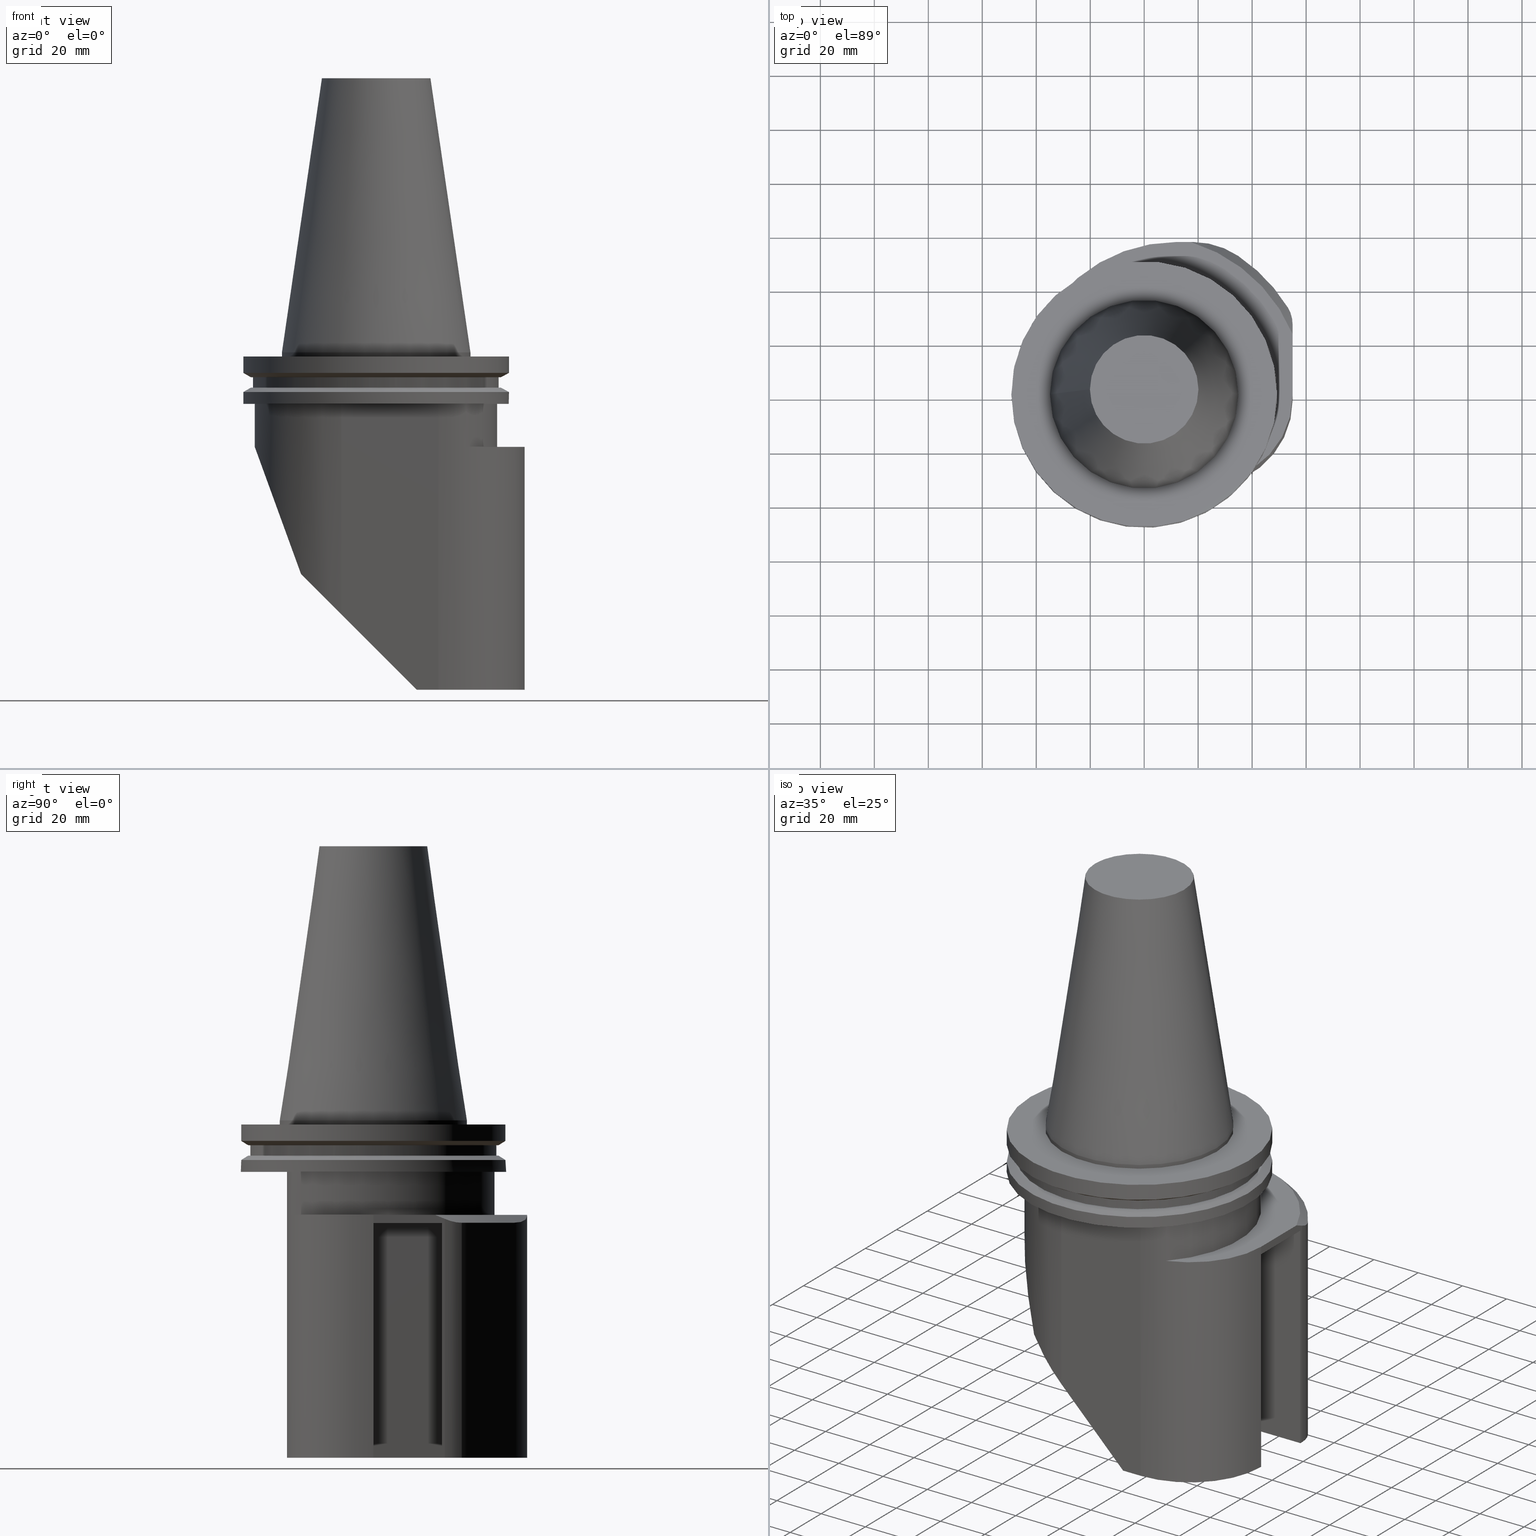
[diagram: canonical four-view strip — front | top / right | iso, engineering-drawing reading convention]
A machine part, canonical four-view strip (front | top / right | iso — engineering-drawing reading convention). The complete STEP part file that produces these views, byte-faithful:
ISO-10303-21;
HEADER;
FILE_DESCRIPTION((''),'1');
FILE_NAME('V:/01_Dxf_Field-HP\X2\FF71FF6FFF8CFF9F5916\X0\2013/BIGKAISER\X2\FF76FF80FF9BFF78FF9E63B28F095206\X0\_BKUS_201803/BCV50Y-180-BH/BCV50Y-180-BH1.000R-5.stp','2018-03-14T06:41:19',(''),(''),'Spatial Interop R21 SP3','Kubotek KeyCreator 2011 V10.0.2 (22737)',' ');
FILE_SCHEMA(('automotive_design'));
ENDSEC;
DATA;
#1=MECHANICAL_DESIGN_GEOMETRIC_PRESENTATION_REPRESENTATION(' ',(#10,#11,#12,#13,#14,#15,#16,#17,#18,#19,#20,#21,#22,#23,#24,#25,#26,#27,#28,#29,#30,#31,#32,#33,#34,#35,#36,#37,#38,#39,#40,#41,#42,#43,#44,#45,#46,#47,#48,#49,#50,#51,#52,#53,#54,#55,#56,#57,#58,#59,#60,#61,#62,#63,#64,#65,#66,#67,#68,#69,#70,#71,#72,#73,#74,#75,#76,#77,#78,#79,#80,#81,#82,#83,#84,#85,#86,#87,#88,#89,#90,#91,#92,#93,#94,#95,#96,#97,#98,#99,#100,#101,#102,#103),#6);
#2=PRODUCT_DEFINITION_CONTEXT('',#104,'design');
#3=APPLICATION_PROTOCOL_DEFINITION('INTERNATIONAL STANDARD','automotive_design',1994,#104);
#4=PRODUCT_CATEGORY_RELATIONSHIP('NONE','NONE',#105,#106);
#5=SHAPE_DEFINITION_REPRESENTATION(#107,#108);
#6= (GEOMETRIC_REPRESENTATION_CONTEXT(3)GLOBAL_UNCERTAINTY_ASSIGNED_CONTEXT((#111))GLOBAL_UNIT_ASSIGNED_CONTEXT((#113,#114,#115))REPRESENTATION_CONTEXT('NONE','WORKSPACE'));
#10=STYLED_ITEM('',(#117,#118),#119);
#11=STYLED_ITEM('',(#120,#121),#122);
#12=STYLED_ITEM('',(#123,#124),#125);
#13=STYLED_ITEM('',(#126),#127);
#14=STYLED_ITEM('',(#128),#129);
#15=STYLED_ITEM('',(#130,#131),#132);
#16=STYLED_ITEM('',(#133),#134);
#17=STYLED_ITEM('',(#135,#136),#137);
#18=STYLED_ITEM('',(#138),#139);
#19=STYLED_ITEM('',(#140),#141);
#20=STYLED_ITEM('',(#142,#143),#144);
#21=STYLED_ITEM('',(#145,#146),#147);
#22=STYLED_ITEM('',(#148),#149);
#23=STYLED_ITEM('',(#150),#151);
#24=STYLED_ITEM('',(#152,#153),#154);
#25=STYLED_ITEM('',(#155),#156);
#26=STYLED_ITEM('',(#157),#158);
#27=STYLED_ITEM('',(#159),#160);
#28=STYLED_ITEM('',(#161,#162),#163);
#29=STYLED_ITEM('',(#164),#165);
#30=STYLED_ITEM('',(#166),#167);
#31=STYLED_ITEM('',(#168),#169);
#32=STYLED_ITEM('',(#170,#171),#172);
#33=STYLED_ITEM('',(#173),#174);
#34=STYLED_ITEM('',(#175,#176),#177);
#35=STYLED_ITEM('',(#178),#179);
#36=STYLED_ITEM('',(#180,#181),#182);
#37=STYLED_ITEM('',(#183),#184);
#38=STYLED_ITEM('',(#185),#186);
#39=STYLED_ITEM('',(#187),#188);
#40=STYLED_ITEM('',(#189),#190);
#41=STYLED_ITEM('',(#191),#192);
#42=STYLED_ITEM('',(#193),#194);
#43=STYLED_ITEM('',(#195,#196),#197);
#44=STYLED_ITEM('',(#198),#199);
#45=STYLED_ITEM('',(#200,#201),#202);
#46=STYLED_ITEM('',(#203),#204);
#47=STYLED_ITEM('',(#205,#206),#207);
#48=STYLED_ITEM('',(#208),#209);
#49=STYLED_ITEM('',(#210,#211),#212);
#50=STYLED_ITEM('',(#213),#214);
#51=STYLED_ITEM('',(#215),#216);
#52=STYLED_ITEM('',(#217,#218),#219);
#53=STYLED_ITEM('',(#220),#221);
#54=STYLED_ITEM('',(#222),#223);
#55=STYLED_ITEM('',(#224),#225);
#56=STYLED_ITEM('',(#226,#227),#228);
#57=STYLED_ITEM('',(#229,#230),#231);
#58=STYLED_ITEM('',(#232),#233);
#59=STYLED_ITEM('',(#234),#235);
#60=STYLED_ITEM('',(#236),#237);
#61=STYLED_ITEM('',(#238),#239);
#62=STYLED_ITEM('',(#240),#241);
#63=STYLED_ITEM('',(#242,#243),#244);
#64=STYLED_ITEM('',(#245,#246),#247);
#65=STYLED_ITEM('',(#248,#249),#250);
#66=STYLED_ITEM('',(#251,#252),#253);
#67=STYLED_ITEM('',(#254,#255),#256);
#68=STYLED_ITEM('',(#257),#258);
#69=STYLED_ITEM('',(#259),#260);
#70=STYLED_ITEM('',(#261,#262),#263);
#71=STYLED_ITEM('',(#264),#265);
#72=STYLED_ITEM('',(#266),#267);
#73=STYLED_ITEM('',(#268),#269);
#74=STYLED_ITEM('',(#270),#271);
#75=STYLED_ITEM('',(#272),#273);
#76=STYLED_ITEM('',(#274),#275);
#77=STYLED_ITEM('',(#276,#277),#278);
#78=STYLED_ITEM('',(#279),#280);
#79=STYLED_ITEM('',(#281),#282);
#80=STYLED_ITEM('',(#283),#284);
#81=STYLED_ITEM('',(#285),#286);
#82=STYLED_ITEM('',(#287),#288);
#83=STYLED_ITEM('',(#289),#290);
#84=STYLED_ITEM('',(#291),#292);
#85=STYLED_ITEM('',(#293,#294),#295);
#86=STYLED_ITEM('',(#296),#297);
#87=STYLED_ITEM('',(#298),#299);
#88=STYLED_ITEM('',(#300,#301),#302);
#89=STYLED_ITEM('',(#303),#304);
#90=STYLED_ITEM('',(#305),#306);
#91=STYLED_ITEM('',(#307),#308);
#92=STYLED_ITEM('',(#309,#310),#311);
#93=STYLED_ITEM('',(#312),#313);
#94=STYLED_ITEM('',(#314),#315);
#95=STYLED_ITEM('',(#316),#317);
#96=STYLED_ITEM('',(#318),#319);
#97=STYLED_ITEM('',(#320),#321);
#98=STYLED_ITEM('',(#322,#323),#324);
#99=STYLED_ITEM('',(#325),#326);
#100=STYLED_ITEM('',(#327,#328),#329);
#101=STYLED_ITEM('',(#330),#331);
#102=STYLED_ITEM('',(#332,#333),#334);
#103=STYLED_ITEM('',(#335),#336);
#104=APPLICATION_CONTEXT(' ');
#105=PRODUCT_CATEGORY('part','NONE');
#106=PRODUCT_RELATED_PRODUCT_CATEGORY('detail',' ',(#337));
#107=PRODUCT_DEFINITION_SHAPE('NONE','NONE',#338);
#108=ADVANCED_BREP_SHAPE_REPRESENTATION('Unnamed[1]',(#197,#339),#6);
#111=UNCERTAINTY_MEASURE_WITH_UNIT(LENGTH_MEASURE(1.0E-006),#113,'','');
#113= (CONVERSION_BASED_UNIT('MILLIMETRE',#342)LENGTH_UNIT()NAMED_UNIT(#345));
#114= (NAMED_UNIT(#347)PLANE_ANGLE_UNIT()SI_UNIT($,.RADIAN.));
#115= (NAMED_UNIT(#347)SOLID_ANGLE_UNIT()SI_UNIT($,.STERADIAN.));
#117=PRESENTATION_STYLE_ASSIGNMENT((#353));
#118=PRESENTATION_STYLE_ASSIGNMENT((#354));
#119=ADVANCED_FACE('Unnamed[1]',(#355),#356,.F.);
#120=PRESENTATION_STYLE_ASSIGNMENT((#357));
#121=PRESENTATION_STYLE_ASSIGNMENT((#358));
#122=ADVANCED_FACE('Unnamed[1]',(#359,#360),#361,.T.);
#123=PRESENTATION_STYLE_ASSIGNMENT((#362));
#124=PRESENTATION_STYLE_ASSIGNMENT((#363));
#125=ADVANCED_FACE('Unnamed[1]',(#364),#365,.T.);
#126=PRESENTATION_STYLE_ASSIGNMENT((#366));
#127=EDGE_CURVE('Unnamed[1]',#367,#368,#369,.T.);
#128=PRESENTATION_STYLE_ASSIGNMENT((#370));
#129=EDGE_CURVE('Unnamed[1]',#371,#372,#373,.T.);
#130=PRESENTATION_STYLE_ASSIGNMENT((#374));
#131=PRESENTATION_STYLE_ASSIGNMENT((#375));
#132=ADVANCED_FACE('Unnamed[1]',(#376),#377,.F.);
#133=PRESENTATION_STYLE_ASSIGNMENT((#378));
#134=EDGE_CURVE('Unnamed[1]',#368,#379,#380,.T.);
#135=PRESENTATION_STYLE_ASSIGNMENT((#381));
#136=PRESENTATION_STYLE_ASSIGNMENT((#382));
#137=ADVANCED_FACE('Unnamed[1]',(#383,#384),#385,.T.);
#138=PRESENTATION_STYLE_ASSIGNMENT((#386));
#139=EDGE_CURVE('Unnamed[1]',#387,#388,#389,.T.);
#140=PRESENTATION_STYLE_ASSIGNMENT((#390));
#141=EDGE_CURVE('Unnamed[1]',#387,#391,#392,.T.);
#142=PRESENTATION_STYLE_ASSIGNMENT((#393));
#143=PRESENTATION_STYLE_ASSIGNMENT((#394));
#144=ADVANCED_FACE('Unnamed[1]',(#395),#396,.T.);
#145=PRESENTATION_STYLE_ASSIGNMENT((#397));
#146=PRESENTATION_STYLE_ASSIGNMENT((#398));
#147=ADVANCED_FACE('Unnamed[1]',(#399),#400,.T.);
#148=PRESENTATION_STYLE_ASSIGNMENT((#401));
#149=EDGE_CURVE('Unnamed[1]',#402,#403,#404,.T.);
#150=PRESENTATION_STYLE_ASSIGNMENT((#405));
#151=EDGE_CURVE('Unnamed[1]',#402,#406,#407,.T.);
#152=PRESENTATION_STYLE_ASSIGNMENT((#408));
#153=PRESENTATION_STYLE_ASSIGNMENT((#409));
#154=ADVANCED_FACE('Unnamed[1]',(#410),#411,.F.);
#155=PRESENTATION_STYLE_ASSIGNMENT((#412));
#156=EDGE_CURVE('Unnamed[1]',#391,#367,#413,.T.);
#157=PRESENTATION_STYLE_ASSIGNMENT((#414));
#158=EDGE_CURVE('Unnamed[1]',#415,#416,#417,.T.);
#159=PRESENTATION_STYLE_ASSIGNMENT((#418));
#160=EDGE_CURVE('Unnamed[1]',#419,#420,#421,.T.);
#161=PRESENTATION_STYLE_ASSIGNMENT((#422));
#162=PRESENTATION_STYLE_ASSIGNMENT((#423));
#163=ADVANCED_FACE('Unnamed[1]',(#424,#425),#426,.T.);
#164=PRESENTATION_STYLE_ASSIGNMENT((#427));
#165=EDGE_CURVE('Unnamed[1]',#403,#428,#429,.T.);
#166=PRESENTATION_STYLE_ASSIGNMENT((#430));
#167=EDGE_CURVE('Unnamed[1]',#431,#419,#432,.T.);
#168=PRESENTATION_STYLE_ASSIGNMENT((#433));
#169=EDGE_CURVE('Unnamed[1]',#434,#435,#436,.T.);
#170=PRESENTATION_STYLE_ASSIGNMENT((#437));
#171=PRESENTATION_STYLE_ASSIGNMENT((#438));
#172=ADVANCED_FACE('Unnamed[1]',(#439),#440,.T.);
#173=PRESENTATION_STYLE_ASSIGNMENT((#441));
#174=EDGE_CURVE('Unnamed[1]',#442,#434,#443,.T.);
#175=PRESENTATION_STYLE_ASSIGNMENT((#444));
#176=PRESENTATION_STYLE_ASSIGNMENT((#445));
#177=ADVANCED_FACE('Unnamed[1]',(#446,#447),#448,.T.);
#178=PRESENTATION_STYLE_ASSIGNMENT((#449));
#179=EDGE_CURVE('Unnamed[1]',#420,#450,#451,.T.);
#180=PRESENTATION_STYLE_ASSIGNMENT((#452));
#181=PRESENTATION_STYLE_ASSIGNMENT((#453));
#182=ADVANCED_FACE('Unnamed[1]',(#454),#455,.T.);
#183=PRESENTATION_STYLE_ASSIGNMENT((#456));
#184=EDGE_CURVE('Unnamed[1]',#457,#458,#459,.T.);
#185=PRESENTATION_STYLE_ASSIGNMENT((#460));
#186=EDGE_CURVE('Unnamed[1]',#461,#458,#462,.T.);
#187=PRESENTATION_STYLE_ASSIGNMENT((#463));
#188=EDGE_CURVE('Unnamed[1]',#464,#464,#465,.T.);
#189=PRESENTATION_STYLE_ASSIGNMENT((#466));
#190=EDGE_CURVE('Unnamed[1]',#467,#467,#468,.T.);
#191=PRESENTATION_STYLE_ASSIGNMENT((#469));
#192=EDGE_CURVE('Unnamed[1]',#470,#470,#471,.T.);
#193=PRESENTATION_STYLE_ASSIGNMENT((#472));
#194=EDGE_CURVE('Unnamed[1]',#473,#473,#474,.T.);
#195=PRESENTATION_STYLE_ASSIGNMENT((#475));
#196=PRESENTATION_STYLE_ASSIGNMENT((#476));
#197=MANIFOLD_SOLID_BREP('Unnamed[1]',#477);
#198=PRESENTATION_STYLE_ASSIGNMENT((#478));
#199=EDGE_CURVE('Unnamed[1]',#479,#480,#481,.T.);
#200=PRESENTATION_STYLE_ASSIGNMENT((#482));
#201=PRESENTATION_STYLE_ASSIGNMENT((#483));
#202=ADVANCED_FACE('Unnamed[1]',(#484),#485,.F.);
#203=PRESENTATION_STYLE_ASSIGNMENT((#486));
#204=EDGE_CURVE('Unnamed[1]',#487,#479,#488,.T.);
#205=PRESENTATION_STYLE_ASSIGNMENT((#489));
#206=PRESENTATION_STYLE_ASSIGNMENT((#490));
#207=ADVANCED_FACE('Unnamed[1]',(#491,#492),#493,.T.);
#208=PRESENTATION_STYLE_ASSIGNMENT((#494));
#209=EDGE_CURVE('Unnamed[1]',#495,#495,#496,.T.);
#210=PRESENTATION_STYLE_ASSIGNMENT((#497));
#211=PRESENTATION_STYLE_ASSIGNMENT((#498));
#212=ADVANCED_FACE('Unnamed[1]',(#499),#500,.T.);
#213=PRESENTATION_STYLE_ASSIGNMENT((#501));
#214=EDGE_CURVE('Unnamed[1]',#458,#487,#502,.T.);
#215=PRESENTATION_STYLE_ASSIGNMENT((#503));
#216=EDGE_CURVE('Unnamed[1]',#428,#367,#504,.T.);
#217=PRESENTATION_STYLE_ASSIGNMENT((#505));
#218=PRESENTATION_STYLE_ASSIGNMENT((#506));
#219=ADVANCED_FACE('Unnamed[1]',(#507,#508),#509,.T.);
#220=PRESENTATION_STYLE_ASSIGNMENT((#510));
#221=EDGE_CURVE('Unnamed[1]',#379,#402,#511,.T.);
#222=PRESENTATION_STYLE_ASSIGNMENT((#512));
#223=EDGE_CURVE('Unnamed[1]',#428,#379,#513,.T.);
#224=PRESENTATION_STYLE_ASSIGNMENT((#514));
#225=EDGE_CURVE('Unnamed[1]',#515,#461,#516,.T.);
#226=PRESENTATION_STYLE_ASSIGNMENT((#517));
#227=PRESENTATION_STYLE_ASSIGNMENT((#518));
#228=ADVANCED_FACE('Unnamed[1]',(#519,#520),#521,.T.);
#229=PRESENTATION_STYLE_ASSIGNMENT((#522));
#230=PRESENTATION_STYLE_ASSIGNMENT((#523));
#231=ADVANCED_FACE('Unnamed[1]',(#524),#525,.T.);
#232=PRESENTATION_STYLE_ASSIGNMENT((#526));
#233=EDGE_CURVE('Unnamed[1]',#527,#461,#528,.T.);
#234=PRESENTATION_STYLE_ASSIGNMENT((#529));
#235=EDGE_CURVE('Unnamed[1]',#515,#416,#530,.T.);
#236=PRESENTATION_STYLE_ASSIGNMENT((#531));
#237=EDGE_CURVE('Unnamed[1]',#532,#532,#533,.T.);
#238=PRESENTATION_STYLE_ASSIGNMENT((#534));
#239=EDGE_CURVE('Unnamed[1]',#388,#535,#536,.T.);
#240=PRESENTATION_STYLE_ASSIGNMENT((#537));
#241=EDGE_CURVE('Unnamed[1]',#457,#527,#538,.T.);
#242=PRESENTATION_STYLE_ASSIGNMENT((#539));
#243=PRESENTATION_STYLE_ASSIGNMENT((#540));
#244=ADVANCED_FACE('Unnamed[1]',(#541),#542,.F.);
#245=PRESENTATION_STYLE_ASSIGNMENT((#543));
#246=PRESENTATION_STYLE_ASSIGNMENT((#544));
#247=ADVANCED_FACE('Unnamed[1]',(#545),#546,.T.);
#248=PRESENTATION_STYLE_ASSIGNMENT((#547));
#249=PRESENTATION_STYLE_ASSIGNMENT((#548));
#250=ADVANCED_FACE('Unnamed[1]',(#549),#550,.T.);
#251=PRESENTATION_STYLE_ASSIGNMENT((#551));
#252=PRESENTATION_STYLE_ASSIGNMENT((#552));
#253=ADVANCED_FACE('Unnamed[1]',(#553),#554,.F.);
#254=PRESENTATION_STYLE_ASSIGNMENT((#555));
#255=PRESENTATION_STYLE_ASSIGNMENT((#556));
#256=ADVANCED_FACE('Unnamed[1]',(#557),#558,.T.);
#257=PRESENTATION_STYLE_ASSIGNMENT((#559));
#258=EDGE_CURVE('Unnamed[1]',#560,#457,#561,.T.);
#259=PRESENTATION_STYLE_ASSIGNMENT((#562));
#260=EDGE_CURVE('Unnamed[1]',#563,#368,#564,.T.);
#261=PRESENTATION_STYLE_ASSIGNMENT((#565));
#262=PRESENTATION_STYLE_ASSIGNMENT((#566));
#263=ADVANCED_FACE('Unnamed[1]',(#567),#568,.F.);
#264=PRESENTATION_STYLE_ASSIGNMENT((#569));
#265=EDGE_CURVE('Unnamed[1]',#570,#442,#571,.T.);
#266=PRESENTATION_STYLE_ASSIGNMENT((#572));
#267=EDGE_CURVE('Unnamed[1]',#442,#372,#573,.T.);
#268=PRESENTATION_STYLE_ASSIGNMENT((#574));
#269=EDGE_CURVE('Unnamed[1]',#487,#415,#575,.T.);
#270=PRESENTATION_STYLE_ASSIGNMENT((#576));
#271=EDGE_CURVE('Unnamed[1]',#577,#577,#578,.T.);
#272=PRESENTATION_STYLE_ASSIGNMENT((#579));
#273=EDGE_CURVE('Unnamed[1]',#535,#372,#580,.T.);
#274=PRESENTATION_STYLE_ASSIGNMENT((#581));
#275=EDGE_CURVE('Unnamed[1]',#480,#387,#582,.T.);
#276=PRESENTATION_STYLE_ASSIGNMENT((#583));
#277=PRESENTATION_STYLE_ASSIGNMENT((#584));
#278=ADVANCED_FACE('Unnamed[1]',(#585),#586,.T.);
#279=PRESENTATION_STYLE_ASSIGNMENT((#587));
#280=EDGE_CURVE('Unnamed[1]',#391,#403,#588,.T.);
#281=PRESENTATION_STYLE_ASSIGNMENT((#589));
#282=EDGE_CURVE('Unnamed[1]',#406,#419,#590,.T.);
#283=PRESENTATION_STYLE_ASSIGNMENT((#591));
#284=EDGE_CURVE('Unnamed[1]',#415,#431,#592,.T.);
#285=PRESENTATION_STYLE_ASSIGNMENT((#593));
#286=EDGE_CURVE('Unnamed[1]',#594,#594,#595,.T.);
#287=PRESENTATION_STYLE_ASSIGNMENT((#596));
#288=EDGE_CURVE('Unnamed[1]',#416,#420,#597,.T.);
#289=PRESENTATION_STYLE_ASSIGNMENT((#598));
#290=EDGE_CURVE('Unnamed[1]',#458,#515,#599,.T.);
#291=PRESENTATION_STYLE_ASSIGNMENT((#600));
#292=EDGE_CURVE('Unnamed[1]',#391,#406,#601,.T.);
#293=PRESENTATION_STYLE_ASSIGNMENT((#602));
#294=PRESENTATION_STYLE_ASSIGNMENT((#603));
#295=ADVANCED_FACE('Unnamed[1]',(#604,#605),#606,.T.);
#296=PRESENTATION_STYLE_ASSIGNMENT((#607));
#297=EDGE_CURVE('Unnamed[1]',#563,#535,#608,.T.);
#298=PRESENTATION_STYLE_ASSIGNMENT((#609));
#299=EDGE_CURVE('Unnamed[1]',#610,#610,#611,.T.);
#300=PRESENTATION_STYLE_ASSIGNMENT((#612));
#301=PRESENTATION_STYLE_ASSIGNMENT((#613));
#302=ADVANCED_FACE('Unnamed[1]',(#614),#615,.F.);
#303=PRESENTATION_STYLE_ASSIGNMENT((#616));
#304=EDGE_CURVE('Unnamed[1]',#450,#435,#617,.T.);
#305=PRESENTATION_STYLE_ASSIGNMENT((#618));
#306=EDGE_CURVE('Unnamed[1]',#570,#371,#619,.T.);
#307=PRESENTATION_STYLE_ASSIGNMENT((#620));
#308=EDGE_CURVE('Unnamed[1]',#371,#563,#621,.T.);
#309=PRESENTATION_STYLE_ASSIGNMENT((#622));
#310=PRESENTATION_STYLE_ASSIGNMENT((#623));
#311=ADVANCED_FACE('Unnamed[1]',(#624,#625),#626,.T.);
#312=PRESENTATION_STYLE_ASSIGNMENT((#627));
#313=EDGE_CURVE('Unnamed[1]',#450,#527,#628,.T.);
#314=PRESENTATION_STYLE_ASSIGNMENT((#629));
#315=EDGE_CURVE('Unnamed[1]',#458,#480,#630,.T.);
#316=PRESENTATION_STYLE_ASSIGNMENT((#631));
#317=EDGE_CURVE('Unnamed[1]',#632,#632,#633,.T.);
#318=PRESENTATION_STYLE_ASSIGNMENT((#634));
#319=EDGE_CURVE('Unnamed[1]',#560,#388,#635,.T.);
#320=PRESENTATION_STYLE_ASSIGNMENT((#636));
#321=EDGE_CURVE('Unnamed[1]',#434,#560,#637,.T.);
#322=PRESENTATION_STYLE_ASSIGNMENT((#638));
#323=PRESENTATION_STYLE_ASSIGNMENT((#639));
#324=ADVANCED_FACE('Unnamed[1]',(#640,#641),#642,.T.);
#325=PRESENTATION_STYLE_ASSIGNMENT((#643));
#326=EDGE_CURVE('Unnamed[1]',#435,#570,#644,.T.);
#327=PRESENTATION_STYLE_ASSIGNMENT((#645));
#328=PRESENTATION_STYLE_ASSIGNMENT((#646));
#329=ADVANCED_FACE('Unnamed[1]',(#647),#648,.T.);
#330=PRESENTATION_STYLE_ASSIGNMENT((#649));
#331=EDGE_CURVE('Unnamed[1]',#431,#479,#650,.T.);
#332=PRESENTATION_STYLE_ASSIGNMENT((#651));
#333=PRESENTATION_STYLE_ASSIGNMENT((#652));
#334=ADVANCED_FACE('Unnamed[1]',(#653,#654),#655,.T.);
#335=PRESENTATION_STYLE_ASSIGNMENT((#656));
#336=EDGE_CURVE('Unnamed[1]',#657,#657,#658,.T.);
#337=PRODUCT('Unnamed[1]','Unnamed[1]','PART-Unnamed[1]-DESC',(#659));
#338=PRODUCT_DEFINITION('NONE','NONE',#660,#2);
#339=AXIS2_PLACEMENT_3D('',#661,#662,#663);
#342=LENGTH_MEASURE_WITH_UNIT(LENGTH_MEASURE(1.0),#664);
#345=DIMENSIONAL_EXPONENTS(1.0,0.0,0.0,0.0,0.0,0.0,0.0);
#347=DIMENSIONAL_EXPONENTS(0.0,0.0,0.0,0.0,0.0,0.0,0.0);
#353=SURFACE_STYLE_USAGE(.BOTH.,#665);
#354=CURVE_STYLE('',#666,POSITIVE_LENGTH_MEASURE(1000.0),#667);
#355=FACE_OUTER_BOUND('',#668,.T.);
#356=PLANE('',#669);
#357=SURFACE_STYLE_USAGE(.BOTH.,#670);
#358=CURVE_STYLE('',#671,POSITIVE_LENGTH_MEASURE(1000.0),#672);
#359=FACE_BOUND('',#673,.T.);
#360=FACE_BOUND('',#674,.T.);
#361=CONICAL_SURFACE('',#675,47.821518775,1.04719755103023);
#362=SURFACE_STYLE_USAGE(.BOTH.,#676);
#363=CURVE_STYLE('',#677,POSITIVE_LENGTH_MEASURE(1000.0),#678);
#364=FACE_OUTER_BOUND('',#679,.T.);
#365=PLANE('',#680);
#366=CURVE_STYLE('',#681,POSITIVE_LENGTH_MEASURE(1000.0),#682);
#367=VERTEX_POINT('',#683);
#368=VERTEX_POINT('',#684);
#369=LINE('',#685,#686);
#370=CURVE_STYLE('',#687,POSITIVE_LENGTH_MEASURE(1000.0),#688);
#371=VERTEX_POINT('',#689);
#372=VERTEX_POINT('',#690);
#373=LINE('',#691,#692);
#374=SURFACE_STYLE_USAGE(.BOTH.,#693);
#375=CURVE_STYLE('',#694,POSITIVE_LENGTH_MEASURE(1000.0),#695);
#376=FACE_OUTER_BOUND('',#696,.T.);
#377=PLANE('',#697);
#378=CURVE_STYLE('',#698,POSITIVE_LENGTH_MEASURE(1000.0),#699);
#379=VERTEX_POINT('',#700);
#380=LINE('',#701,#702);
#381=SURFACE_STYLE_USAGE(.BOTH.,#703);
#382=CURVE_STYLE('',#704,POSITIVE_LENGTH_MEASURE(1000.0),#705);
#383=FACE_BOUND('',#706,.T.);
#384=FACE_BOUND('',#707,.T.);
#385=CYLINDRICAL_SURFACE('',#708,49.2125);
#386=CURVE_STYLE('',#709,POSITIVE_LENGTH_MEASURE(1000.0),#710);
#387=VERTEX_POINT('',#711);
#388=VERTEX_POINT('',#712);
#389=LINE('',#713,#714);
#390=CURVE_STYLE('',#715,POSITIVE_LENGTH_MEASURE(1000.0),#716);
#391=VERTEX_POINT('',#717);
#392=LINE('',#718,#719);
#393=SURFACE_STYLE_USAGE(.BOTH.,#720);
#394=CURVE_STYLE('',#721,POSITIVE_LENGTH_MEASURE(1000.0),#722);
#395=FACE_OUTER_BOUND('',#723,.T.);
#396=CYLINDRICAL_SURFACE('',#724,57.0);
#397=SURFACE_STYLE_USAGE(.BOTH.,#725);
#398=CURVE_STYLE('',#726,POSITIVE_LENGTH_MEASURE(1000.0),#727);
#399=FACE_OUTER_BOUND('',#728,.T.);
#400=PLANE('',#729);
#401=CURVE_STYLE('',#730,POSITIVE_LENGTH_MEASURE(1000.0),#731);
#402=VERTEX_POINT('',#732);
#403=VERTEX_POINT('',#733);
#404=LINE('',#734,#735);
#405=CURVE_STYLE('',#736,POSITIVE_LENGTH_MEASURE(1000.0),#737);
#406=VERTEX_POINT('',#738);
#407=LINE('',#739,#740);
#408=SURFACE_STYLE_USAGE(.BOTH.,#741);
#409=CURVE_STYLE('',#742,POSITIVE_LENGTH_MEASURE(1000.0),#743);
#410=FACE_OUTER_BOUND('',#744,.T.);
#411=PLANE('',#745);
#412=CURVE_STYLE('',#746,POSITIVE_LENGTH_MEASURE(1000.0),#747);
#413=LINE('',#748,#749);
#414=CURVE_STYLE('',#750,POSITIVE_LENGTH_MEASURE(1000.0),#751);
#415=VERTEX_POINT('',#752);
#416=VERTEX_POINT('',#753);
#417=LINE('',#754,#755);
#418=CURVE_STYLE('',#756,POSITIVE_LENGTH_MEASURE(1000.0),#757);
#419=VERTEX_POINT('',#758);
#420=VERTEX_POINT('',#759);
#421=LINE('',#760,#761);
#422=SURFACE_STYLE_USAGE(.BOTH.,#762);
#423=CURVE_STYLE('',#763,POSITIVE_LENGTH_MEASURE(1000.0),#764);
#424=FACE_OUTER_BOUND('',#765,.T.);
#425=FACE_BOUND('',#766,.T.);
#426=PLANE('',#767);
#427=CURVE_STYLE('',#768,POSITIVE_LENGTH_MEASURE(1000.0),#769);
#428=VERTEX_POINT('',#770);
#429=LINE('',#771,#772);
#430=CURVE_STYLE('',#773,POSITIVE_LENGTH_MEASURE(1000.0),#774);
#431=VERTEX_POINT('',#775);
#432=LINE('',#776,#777);
#433=CURVE_STYLE('',#778,POSITIVE_LENGTH_MEASURE(1000.0),#779);
#434=VERTEX_POINT('',#780);
#435=VERTEX_POINT('',#781);
#436=LINE('',#782,#783);
#437=SURFACE_STYLE_USAGE(.BOTH.,#784);
#438=CURVE_STYLE('',#785,POSITIVE_LENGTH_MEASURE(1000.0),#786);
#439=FACE_OUTER_BOUND('',#787,.T.);
#440=PLANE('',#788);
#441=CURVE_STYLE('',#789,POSITIVE_LENGTH_MEASURE(1000.0),#790);
#442=VERTEX_POINT('',#791);
#443=B_SPLINE_CURVE_WITH_KNOTS('',3,(#792,#793,#794,#795,#796,#797,#798,#799,#800,#801,#802,#803,#804,#805,#806,#807,#808,#809),.UNSPECIFIED.,.F.,.F.,(4,2,2,2,2,2,2,2,4),(18.3526228745231,20.9744261423121,23.5962294101012,26.2180326778902,28.8398359456792,31.4616392134682,34.0834424812572,36.7052457490462,39.3270490168352),.UNSPECIFIED.);
#444=SURFACE_STYLE_USAGE(.BOTH.,#810);
#445=CURVE_STYLE('',#811,POSITIVE_LENGTH_MEASURE(1000.0),#812);
#446=FACE_BOUND('',#813,.T.);
#447=FACE_BOUND('',#814,.T.);
#448=CYLINDRICAL_SURFACE('',#815,34.925);
#449=CURVE_STYLE('',#816,POSITIVE_LENGTH_MEASURE(1000.0),#817);
#450=VERTEX_POINT('',#818);
#451=LINE('',#819,#820);
#452=SURFACE_STYLE_USAGE(.BOTH.,#821);
#453=CURVE_STYLE('',#822,POSITIVE_LENGTH_MEASURE(1000.0),#823);
#454=FACE_OUTER_BOUND('',#824,.T.);
#455=CYLINDRICAL_SURFACE('',#825,32.0);
#456=CURVE_STYLE('',#826,POSITIVE_LENGTH_MEASURE(1000.0),#827);
#457=VERTEX_POINT('',#828);
#458=VERTEX_POINT('',#829);
#459=CIRCLE('',#830,57.0);
#460=CURVE_STYLE('',#831,POSITIVE_LENGTH_MEASURE(1000.0),#832);
#461=VERTEX_POINT('',#833);
#462=ELLIPSE('',#834,166.656850809297,57.0);
#463=CURVE_STYLE('',#835,POSITIVE_LENGTH_MEASURE(1000.0),#836);
#464=VERTEX_POINT('',#837);
#465=CIRCLE('',#838,20.1083333297217);
#466=CURVE_STYLE('',#839,POSITIVE_LENGTH_MEASURE(1000.0),#840);
#467=VERTEX_POINT('',#841);
#468=CIRCLE('',#842,34.925);
#469=CURVE_STYLE('',#843,POSITIVE_LENGTH_MEASURE(1000.0),#844);
#470=VERTEX_POINT('',#845);
#471=CIRCLE('',#846,45.645);
#472=CURVE_STYLE('',#847,POSITIVE_LENGTH_MEASURE(1000.0),#848);
#473=VERTEX_POINT('',#849);
#474=CIRCLE('',#850,49.2125);
#475=SURFACE_STYLE_USAGE(.BOTH.,#851);
#476=CURVE_STYLE('',#852,POSITIVE_LENGTH_MEASURE(1000.0),#853);
#477=CLOSED_SHELL('',(#202,#302,#119,#231,#263,#244,#253,#247,#154,#125,#329,#132,#144,#250,#182,#278,#212,#172,#256,#147,#324,#177,#219,#228,#122,#295,#311,#163,#334,#137,#207));
#478=CURVE_STYLE('',#854,POSITIVE_LENGTH_MEASURE(1000.0),#855);
#479=VERTEX_POINT('',#856);
#480=VERTEX_POINT('',#857);
#481=LINE('',#858,#859);
#482=SURFACE_STYLE_USAGE(.BOTH.,#860);
#483=CURVE_STYLE('',#861,POSITIVE_LENGTH_MEASURE(1000.0),#862);
#484=FACE_OUTER_BOUND('',#863,.T.);
#485=PLANE('',#864);
#486=CURVE_STYLE('',#865,POSITIVE_LENGTH_MEASURE(1000.0),#866);
#487=VERTEX_POINT('',#867);
#488=CIRCLE('',#868,45.0000000000001);
#489=SURFACE_STYLE_USAGE(.BOTH.,#869);
#490=CURVE_STYLE('',#870,POSITIVE_LENGTH_MEASURE(1000.0),#871);
#491=FACE_OUTER_BOUND('',#872,.T.);
#492=FACE_BOUND('',#873,.T.);
#493=PLANE('',#874);
#494=CURVE_STYLE('',#875,POSITIVE_LENGTH_MEASURE(1000.0),#876);
#495=VERTEX_POINT('',#877);
#496=CIRCLE('',#878,45.645);
#497=SURFACE_STYLE_USAGE(.BOTH.,#879);
#498=CURVE_STYLE('',#880,POSITIVE_LENGTH_MEASURE(1000.0),#881);
#499=FACE_OUTER_BOUND('',#882,.T.);
#500=CONICAL_SURFACE('',#883,61.0355339059327,0.785398163397447);
#501=CURVE_STYLE('',#884,POSITIVE_LENGTH_MEASURE(1000.0),#885);
#502=LINE('',#886,#887);
#503=CURVE_STYLE('',#888,POSITIVE_LENGTH_MEASURE(1000.0),#889);
#504=LINE('',#890,#891);
#505=SURFACE_STYLE_USAGE(.BOTH.,#892);
#506=CURVE_STYLE('',#893,POSITIVE_LENGTH_MEASURE(1000.0),#894);
#507=FACE_OUTER_BOUND('',#895,.T.);
#508=FACE_BOUND('',#896,.T.);
#509=PLANE('',#897);
#510=CURVE_STYLE('',#898,POSITIVE_LENGTH_MEASURE(1000.0),#899);
#511=LINE('',#900,#901);
#512=CURVE_STYLE('',#902,POSITIVE_LENGTH_MEASURE(1000.0),#903);
#513=LINE('',#904,#905);
#514=CURVE_STYLE('',#906,POSITIVE_LENGTH_MEASURE(1000.0),#907);
#515=VERTEX_POINT('',#908);
#516=LINE('',#909,#910);
#517=SURFACE_STYLE_USAGE(.BOTH.,#911);
#518=CURVE_STYLE('',#912,POSITIVE_LENGTH_MEASURE(1000.0),#913);
#519=FACE_BOUND('',#914,.T.);
#520=FACE_BOUND('',#915,.T.);
#521=CYLINDRICAL_SURFACE('',#916,49.2125);
#522=SURFACE_STYLE_USAGE(.BOTH.,#917);
#523=CURVE_STYLE('',#918,POSITIVE_LENGTH_MEASURE(1000.0),#919);
#524=FACE_OUTER_BOUND('',#920,.T.);
#525=PLANE('',#921);
#526=CURVE_STYLE('',#922,POSITIVE_LENGTH_MEASURE(1000.0),#923);
#527=VERTEX_POINT('',#924);
#528=ELLIPSE('',#925,80.6101730552767,57.0);
#529=CURVE_STYLE('',#926,POSITIVE_LENGTH_MEASURE(1000.0),#927);
#530=ELLIPSE('',#928,45.2548339959449,32.0);
#531=CURVE_STYLE('',#929,POSITIVE_LENGTH_MEASURE(1000.0),#930);
#532=VERTEX_POINT('',#931);
#533=CIRCLE('',#932,46.43053755);
#534=CURVE_STYLE('',#933,POSITIVE_LENGTH_MEASURE(1000.0),#934);
#535=VERTEX_POINT('',#935);
#536=(B_SPLINE_CURVE(2,(#937,#938,#939),.UNSPECIFIED.,.F.,.F.)B_SPLINE_CURVE_WITH_KNOTS((3,3),(0.0,7.40632866293273),.UNSPECIFIED.)RATIONAL_B_SPLINE_CURVE((1.0,1.00155566136634,1.0))BOUNDED_CURVE()REPRESENTATION_ITEM('')GEOMETRIC_REPRESENTATION_ITEM()CURVE());
#537=CURVE_STYLE('',#946,POSITIVE_LENGTH_MEASURE(1000.0),#947);
#538=LINE('',#948,#949);
#539=SURFACE_STYLE_USAGE(.BOTH.,#950);
#540=CURVE_STYLE('',#951,POSITIVE_LENGTH_MEASURE(1000.0),#952);
#541=FACE_OUTER_BOUND('',#953,.T.);
#542=PLANE('',#954);
#543=SURFACE_STYLE_USAGE(.BOTH.,#955);
#544=CURVE_STYLE('',#956,POSITIVE_LENGTH_MEASURE(1000.0),#957);
#545=FACE_OUTER_BOUND('',#958,.T.);
#546=CYLINDRICAL_SURFACE('',#959,32.0);
#547=SURFACE_STYLE_USAGE(.BOTH.,#960);
#548=CURVE_STYLE('',#961,POSITIVE_LENGTH_MEASURE(1000.0),#962);
#549=FACE_OUTER_BOUND('',#963,.T.);
#550=CYLINDRICAL_SURFACE('',#964,11.9998183436439);
#551=SURFACE_STYLE_USAGE(.BOTH.,#965);
#552=CURVE_STYLE('',#966,POSITIVE_LENGTH_MEASURE(1000.0),#967);
#553=FACE_OUTER_BOUND('',#968,.T.);
#554=PLANE('',#969);
#555=SURFACE_STYLE_USAGE(.BOTH.,#970);
#556=CURVE_STYLE('',#971,POSITIVE_LENGTH_MEASURE(1000.0),#972);
#557=FACE_OUTER_BOUND('',#973,.T.);
#558=CYLINDRICAL_SURFACE('',#974,45.0000000000001);
#559=CURVE_STYLE('',#975,POSITIVE_LENGTH_MEASURE(1000.0),#976);
#560=VERTEX_POINT('',#977);
#561=LINE('',#978,#979);
#562=CURVE_STYLE('',#980,POSITIVE_LENGTH_MEASURE(1000.0),#981);
#563=VERTEX_POINT('',#982);
#564=LINE('',#983,#984);
#565=SURFACE_STYLE_USAGE(.BOTH.,#985);
#566=CURVE_STYLE('',#986,POSITIVE_LENGTH_MEASURE(1000.0),#987);
#567=FACE_OUTER_BOUND('',#988,.T.);
#568=PLANE('',#989);
#569=CURVE_STYLE('',#990,POSITIVE_LENGTH_MEASURE(1000.0),#991);
#570=VERTEX_POINT('',#992);
#571=LINE('',#993,#994);
#572=CURVE_STYLE('',#995,POSITIVE_LENGTH_MEASURE(1000.0),#996);
#573=CIRCLE('',#997,62.5000000000001);
#574=CURVE_STYLE('',#998,POSITIVE_LENGTH_MEASURE(1000.0),#999);
#575=CIRCLE('',#1000,32.0);
#576=CURVE_STYLE('',#1001,POSITIVE_LENGTH_MEASURE(1000.0),#1002);
#577=VERTEX_POINT('',#1003);
#578=CIRCLE('',#1004,49.2125);
#579=CURVE_STYLE('',#1005,POSITIVE_LENGTH_MEASURE(1000.0),#1006);
#580=B_SPLINE_CURVE_WITH_KNOTS('',3,(#1007,#1008,#1009,#1010,#1011,#1012,#1013,#1014,#1015,#1016),.UNSPECIFIED.,.F.,.F.,(4,2,2,2,4),(2.90370727740331,5.80741455480661,8.71112183220992,11.6148291096132,14.5185363870165),.UNSPECIFIED.);
#581=CURVE_STYLE('',#1017,POSITIVE_LENGTH_MEASURE(1000.0),#1018);
#582=CIRCLE('',#1019,32.0);
#583=SURFACE_STYLE_USAGE(.BOTH.,#1020);
#584=CURVE_STYLE('',#1021,POSITIVE_LENGTH_MEASURE(1000.0),#1022);
#585=FACE_OUTER_BOUND('',#1023,.T.);
#586=CYLINDRICAL_SURFACE('',#1024,62.5000000000001);
#587=CURVE_STYLE('',#1025,POSITIVE_LENGTH_MEASURE(1000.0),#1026);
#588=LINE('',#1027,#1028);
#589=CURVE_STYLE('',#1029,POSITIVE_LENGTH_MEASURE(1000.0),#1030);
#590=CIRCLE('',#1031,32.0);
#591=CURVE_STYLE('',#1032,POSITIVE_LENGTH_MEASURE(1000.0),#1033);
#592=LINE('',#1034,#1035);
#593=CURVE_STYLE('',#1036,POSITIVE_LENGTH_MEASURE(1000.0),#1037);
#594=VERTEX_POINT('',#1038);
#595=CIRCLE('',#1039,49.2125);
#596=CURVE_STYLE('',#1040,POSITIVE_LENGTH_MEASURE(1000.0),#1041);
#597=LINE('',#1042,#1043);
#598=CURVE_STYLE('',#1044,POSITIVE_LENGTH_MEASURE(1000.0),#1045);
#599=ELLIPSE('',#1046,93.5617408052192,32.0);
#600=CURVE_STYLE('',#1047,POSITIVE_LENGTH_MEASURE(1000.0),#1048);
#601=LINE('',#1049,#1050);
#602=SURFACE_STYLE_USAGE(.BOTH.,#1051);
#603=CURVE_STYLE('',#1052,POSITIVE_LENGTH_MEASURE(1000.0),#1053);
#604=FACE_BOUND('',#1054,.T.);
#605=FACE_OUTER_BOUND('',#1055,.T.);
#606=PLANE('',#1056);
#607=CURVE_STYLE('',#1057,POSITIVE_LENGTH_MEASURE(1000.0),#1058);
#608=LINE('',#1059,#1060);
#609=CURVE_STYLE('',#1061,POSITIVE_LENGTH_MEASURE(1000.0),#1062);
#610=VERTEX_POINT('',#1063);
#611=CIRCLE('',#1064,34.925);
#612=SURFACE_STYLE_USAGE(.BOTH.,#1065);
#613=CURVE_STYLE('',#1066,POSITIVE_LENGTH_MEASURE(1000.0),#1067);
#614=FACE_OUTER_BOUND('',#1068,.T.);
#615=PLANE('',#1069);
#616=CURVE_STYLE('',#1070,POSITIVE_LENGTH_MEASURE(1000.0),#1071);
#617=LINE('',#1072,#1073);
#618=CURVE_STYLE('',#1074,POSITIVE_LENGTH_MEASURE(1000.0),#1075);
#619=CIRCLE('',#1076,62.5000000000001);
#620=CURVE_STYLE('',#1077,POSITIVE_LENGTH_MEASURE(1000.0),#1078);
#621=CIRCLE('',#1079,11.9998183436439);
#622=SURFACE_STYLE_USAGE(.BOTH.,#1080);
#623=CURVE_STYLE('',#1081,POSITIVE_LENGTH_MEASURE(1000.0),#1082);
#624=FACE_BOUND('',#1083,.T.);
#625=FACE_BOUND('',#1084,.T.);
#626=CYLINDRICAL_SURFACE('',#1085,45.645);
#627=CURVE_STYLE('',#1086,POSITIVE_LENGTH_MEASURE(1000.0),#1087);
#628=LINE('',#1088,#1089);
#629=CURVE_STYLE('',#1090,POSITIVE_LENGTH_MEASURE(1000.0),#1091);
#630=CIRCLE('',#1092,45.0000000000001);
#631=CURVE_STYLE('',#1093,POSITIVE_LENGTH_MEASURE(1000.0),#1094);
#632=VERTEX_POINT('',#1095);
#633=CIRCLE('',#1096,46.43053755);
#634=CURVE_STYLE('',#1097,POSITIVE_LENGTH_MEASURE(1000.0),#1098);
#635=CIRCLE('',#1099,59.5710678118653);
#636=CURVE_STYLE('',#1100,POSITIVE_LENGTH_MEASURE(1000.0),#1101);
#637=(B_SPLINE_CURVE(2,(#1103,#1104,#1105),.UNSPECIFIED.,.F.,.F.)B_SPLINE_CURVE_WITH_KNOTS((3,3),(0.0,8.82804257858334),.UNSPECIFIED.)RATIONAL_B_SPLINE_CURVE((1.0,1.0023334520714,1.0))BOUNDED_CURVE()REPRESENTATION_ITEM('')GEOMETRIC_REPRESENTATION_ITEM()CURVE());
#638=SURFACE_STYLE_USAGE(.BOTH.,#1112);
#639=CURVE_STYLE('',#1113,POSITIVE_LENGTH_MEASURE(1000.0),#1114);
#640=FACE_BOUND('',#1115,.T.);
#641=FACE_BOUND('',#1116,.T.);
#642=CONICAL_SURFACE('',#1117,27.5166666648608,0.144812498273746);
#643=CURVE_STYLE('',#1118,POSITIVE_LENGTH_MEASURE(1000.0),#1119);
#644=CIRCLE('',#1120,30.0);
#645=SURFACE_STYLE_USAGE(.BOTH.,#1121);
#646=CURVE_STYLE('',#1122,POSITIVE_LENGTH_MEASURE(1000.0),#1123);
#647=FACE_OUTER_BOUND('',#1124,.T.);
#648=CYLINDRICAL_SURFACE('',#1125,30.0);
#649=CURVE_STYLE('',#1126,POSITIVE_LENGTH_MEASURE(1000.0),#1127);
#650=CIRCLE('',#1128,32.0);
#651=SURFACE_STYLE_USAGE(.BOTH.,#1129);
#652=CURVE_STYLE('',#1130,POSITIVE_LENGTH_MEASURE(1000.0),#1131);
#653=FACE_BOUND('',#1132,.T.);
#654=FACE_BOUND('',#1133,.T.);
#655=CONICAL_SURFACE('',#1134,47.821518775,1.04719755103023);
#656=CURVE_STYLE('',#1135,POSITIVE_LENGTH_MEASURE(1000.0),#1136);
#657=VERTEX_POINT('',#1137);
#658=CIRCLE('',#1138,49.2125);
#659=PRODUCT_CONTEXT('',#104,'mechanical');
#660=PRODUCT_DEFINITION_FORMATION_WITH_SPECIFIED_SOURCE(' ','NONE',#337,.NOT_KNOWN.);
#661=CARTESIAN_POINT('',(0.0,0.0,0.0));
#662=DIRECTION('',(0.0,0.0,1.0));
#663=DIRECTION('',(1.0,0.0,0.0));
#664= (NAMED_UNIT(#345)LENGTH_UNIT()SI_UNIT(.MILLI.,.METRE.));
#665=SURFACE_SIDE_STYLE('',(#1140));
#666=DRAUGHTING_PRE_DEFINED_CURVE_FONT('continuous');
#667=COLOUR_RGB('',0.0,1.0,0.0);
#668=EDGE_LOOP('',(#1141,#1142,#1143,#1144));
#669=AXIS2_PLACEMENT_3D('',#1145,#1146,#1147);
#670=SURFACE_SIDE_STYLE('',(#1148));
#671=DRAUGHTING_PRE_DEFINED_CURVE_FONT('continuous');
#672=COLOUR_RGB('',0.0,1.0,0.0);
#673=EDGE_LOOP('',(#1149));
#674=EDGE_LOOP('',(#1150));
#675=AXIS2_PLACEMENT_3D('',#1151,#1152,#1153);
#676=SURFACE_SIDE_STYLE('',(#1154));
#677=DRAUGHTING_PRE_DEFINED_CURVE_FONT('continuous');
#678=COLOUR_RGB('',0.0,1.0,0.0);
#679=EDGE_LOOP('',(#1155,#1156,#1157,#1158,#1159,#1160,#1161,#1162,#1163,#1164,#1165));
#680=AXIS2_PLACEMENT_3D('',#1166,#1167,#1168);
#681=DRAUGHTING_PRE_DEFINED_CURVE_FONT('continuous');
#682=COLOUR_RGB('',0.0,1.0,0.0);
#683=CARTESIAN_POINT('',(54.9999999263912,25.3999999999998,-38.1));
#684=CARTESIAN_POINT('',(54.9999999263912,25.3999999999998,-125.0));
#685=CARTESIAN_POINT('',(54.9999999263912,25.3999999999998,-315.0));
#686=VECTOR('',#1169,1.0);
#687=DRAUGHTING_PRE_DEFINED_CURVE_FONT('continuous');
#688=COLOUR_RGB('',0.0,1.0,0.0);
#689=CARTESIAN_POINT('',(53.2178217821757,32.7736699922448,-125.0));
#690=CARTESIAN_POINT('',(53.2178217821755,32.7736699922447,-37.9289321881343));
#691=CARTESIAN_POINT('',(53.2178217821755,32.7736699922447,-19.05));
#692=VECTOR('',#1170,1.0);
#693=SURFACE_SIDE_STYLE('',(#1171));
#694=DRAUGHTING_PRE_DEFINED_CURVE_FONT('continuous');
#695=COLOUR_RGB('',0.0,1.0,0.0);
#696=EDGE_LOOP('',(#1172,#1173,#1174,#1175,#1176,#1177));
#697=AXIS2_PLACEMENT_3D('',#1178,#1179,#1180);
#698=DRAUGHTING_PRE_DEFINED_CURVE_FONT('continuous');
#699=COLOUR_RGB('',0.0,1.0,0.0);
#700=CARTESIAN_POINT('',(29.5999999999996,25.3999999999999,-125.0));
#701=CARTESIAN_POINT('',(5.5249999815977,25.4,-125.0));
#702=VECTOR('',#1181,1.0);
#703=SURFACE_SIDE_STYLE('',(#1182));
#704=DRAUGHTING_PRE_DEFINED_CURVE_FONT('continuous');
#705=COLOUR_RGB('',0.0,1.0,0.0);
#706=EDGE_LOOP('',(#1183));
#707=EDGE_LOOP('',(#1184));
#708=AXIS2_PLACEMENT_3D('',#1185,#1186,#1187);
#709=DRAUGHTING_PRE_DEFINED_CURVE_FONT('continuous');
#710=COLOUR_RGB('',0.0,1.0,0.0);
#711=CARTESIAN_POINT('',(54.9999999999991,9.27301348700585E-008,-34.9999999999999));
#712=CARTESIAN_POINT('',(54.9999999336802,22.8847575373,-34.9999999999998));
#713=CARTESIAN_POINT('',(54.9999999808129,6.62062054196219,-34.9999999999999));
#714=VECTOR('',#1188,1.0);
#715=DRAUGHTING_PRE_DEFINED_CURVE_FONT('continuous');
#716=COLOUR_RGB('',0.0,1.0,0.0);
#717=CARTESIAN_POINT('',(54.9999999999991,-6.92797071061492E-014,-38.1));
#718=CARTESIAN_POINT('',(54.9999999999991,9.27301177250033E-008,-315.0));
#719=VECTOR('',#1189,1.0);
#720=SURFACE_SIDE_STYLE('',(#1190));
#721=DRAUGHTING_PRE_DEFINED_CURVE_FONT('continuous');
#722=COLOUR_RGB('',0.0,1.0,0.0);
#723=EDGE_LOOP('',(#1191,#1192,#1193,#1194));
#724=AXIS2_PLACEMENT_3D('',#1195,#1196,#1197);
#725=SURFACE_SIDE_STYLE('',(#1198));
#726=DRAUGHTING_PRE_DEFINED_CURVE_FONT('continuous');
#727=COLOUR_RGB('',0.0,1.0,0.0);
#728=EDGE_LOOP('',(#1199));
#729=AXIS2_PLACEMENT_3D('',#1200,#1201,#1202);
#730=DRAUGHTING_PRE_DEFINED_CURVE_FONT('continuous');
#731=COLOUR_RGB('',0.0,1.0,0.0);
#732=CARTESIAN_POINT('',(29.5999999999996,-1.83621730865309E-013,-125.0));
#733=CARTESIAN_POINT('',(29.5999999999996,-1.78300640523014E-013,-38.1));
#734=CARTESIAN_POINT('',(29.5999999999996,-1.95255875457209E-013,-315.0));
#735=VECTOR('',#1203,1.0);
#736=DRAUGHTING_PRE_DEFINED_CURVE_FONT('continuous');
#737=COLOUR_RGB('',0.0,1.0,0.0);
#738=CARTESIAN_POINT('',(54.9999999999991,9.27301293591479E-008,-125.0));
#739=CARTESIAN_POINT('',(5.52499999999966,-2.8695554866102E-013,-125.0));
#740=VECTOR('',#1204,1.0);
#741=SURFACE_SIDE_STYLE('',(#1205));
#742=DRAUGHTING_PRE_DEFINED_CURVE_FONT('continuous');
#743=COLOUR_RGB('',0.0,1.0,0.0);
#744=EDGE_LOOP('',(#1206,#1207,#1208,#1209,#1210));
#745=AXIS2_PLACEMENT_3D('',#1211,#1212,#1213);
#746=DRAUGHTING_PRE_DEFINED_CURVE_FONT('continuous');
#747=COLOUR_RGB('',0.0,1.0,0.0);
#748=CARTESIAN_POINT('',(54.9999999624109,12.9706203865081,-38.1));
#749=VECTOR('',#1214,1.0);
#750=DRAUGHTING_PRE_DEFINED_CURVE_FONT('continuous');
#751=COLOUR_RGB('',0.0,1.0,0.0);
#752=CARTESIAN_POINT('',(-13.0000000000003,-32.0000000000003,-19.05));
#753=CARTESIAN_POINT('',(-13.0000000000003,-32.0000000000003,-96.9999999999997));
#754=CARTESIAN_POINT('',(-13.0000000000003,-32.0000000000003,-315.0));
#755=VECTOR('',#1215,1.0);
#756=DRAUGHTING_PRE_DEFINED_CURVE_FONT('continuous');
#757=COLOUR_RGB('',0.0,1.0,0.0);
#758=CARTESIAN_POINT('',(22.9999999999998,-32.0000000000002,-125.0));
#759=CARTESIAN_POINT('',(14.9999999999928,-32.0000000000002,-125.0));
#760=CARTESIAN_POINT('',(-13.1250000000001,-32.0000000000003,-125.0));
#761=VECTOR('',#1216,1.0);
#762=SURFACE_SIDE_STYLE('',(#1217));
#763=DRAUGHTING_PRE_DEFINED_CURVE_FONT('continuous');
#764=COLOUR_RGB('',0.0,1.0,0.0);
#765=EDGE_LOOP('',(#1218));
#766=EDGE_LOOP('',(#1219));
#767=AXIS2_PLACEMENT_3D('',#1220,#1221,#1222);
#768=DRAUGHTING_PRE_DEFINED_CURVE_FONT('continuous');
#769=COLOUR_RGB('',0.0,1.0,0.0);
#770=CARTESIAN_POINT('',(29.5999999999995,25.3999999999999,-38.1));
#771=CARTESIAN_POINT('',(29.5999999999995,25.3999999999999,-38.1));
#772=VECTOR('',#1223,1.0);
#773=DRAUGHTING_PRE_DEFINED_CURVE_FONT('continuous');
#774=COLOUR_RGB('',0.0,1.0,0.0);
#775=CARTESIAN_POINT('',(22.9999999999998,-32.0000000000002,-19.05));
#776=CARTESIAN_POINT('',(22.9999999999998,-32.0000000000002,-315.0));
#777=VECTOR('',#1224,1.0);
#778=DRAUGHTING_PRE_DEFINED_CURVE_FONT('continuous');
#779=COLOUR_RGB('',0.0,1.0,0.0);
#780=CARTESIAN_POINT('',(18.0900525151252,56.9999999999998,-35.2306880152));
#781=CARTESIAN_POINT('',(18.0900525151252,56.9999999999998,-125.0));
#782=CARTESIAN_POINT('',(18.0900525151252,56.9999999999998,-315.0));
#783=VECTOR('',#1225,1.0);
#784=SURFACE_SIDE_STYLE('',(#1226));
#785=DRAUGHTING_PRE_DEFINED_CURVE_FONT('continuous');
#786=COLOUR_RGB('',0.0,1.0,0.0);
#787=EDGE_LOOP('',(#1227,#1228,#1229,#1230,#1231,#1232));
#788=AXIS2_PLACEMENT_3D('',#1233,#1234,#1235);
#789=DRAUGHTING_PRE_DEFINED_CURVE_FONT('continuous');
#790=COLOUR_RGB('',0.0,1.0,0.0);
#791=CARTESIAN_POINT('',(34.7885625290874,51.9230769230766,-37.9289321881343));
#792=CARTESIAN_POINT('',(36.9293031232081,50.3470048726992,-37.8676567812697));
#793=CARTESIAN_POINT('',(36.2310859312722,50.9104128442772,-37.9089969844905));
#794=CARTESIAN_POINT('',(35.5146003570905,51.4366301661675,-37.9289321881342));
#795=CARTESIAN_POINT('',(34.0625247010843,52.4095236799856,-37.9289321881342));
#796=CARTESIAN_POINT('',(33.3033386894912,52.8720091907526,-37.9089969844905));
#797=CARTESIAN_POINT('',(31.7300727662765,53.7348982294252,-37.826316578049));
#798=CARTESIAN_POINT('',(30.9159947242041,54.1353054468107,-37.7635743060566));
#799=CARTESIAN_POINT('',(29.2461946153871,54.8634184672913,-37.5941328051954));
#800=CARTESIAN_POINT('',(28.3903761908075,55.1911711864997,-37.4874250287378));
#801=CARTESIAN_POINT('',(26.6515180718398,55.7669968577113,-37.2305426082173));
#802=CARTESIAN_POINT('',(25.7684796274509,56.0150732489616,-37.0803672122109));
#803=CARTESIAN_POINT('',(23.9907638397965,56.4281213874442,-36.7386875066759));
#804=CARTESIAN_POINT('',(23.0952236298393,56.5932968532803,-36.5470151554054));
#805=CARTESIAN_POINT('',(21.3067565370927,56.8407066231535,-36.1254993555508));
#806=CARTESIAN_POINT('',(20.4138309401251,56.9229435157616,-35.8956519706816));
#807=CARTESIAN_POINT('',(18.6466960339066,57.0078763470245,-35.4028885997026));
#808=CARTESIAN_POINT('',(17.7723984219897,57.0105795775983,-35.139942832626));
#809=CARTESIAN_POINT('',(16.9152739220743,56.9769894295156,-34.8638025615941));
#810=SURFACE_SIDE_STYLE('',(#1236));
#811=DRAUGHTING_PRE_DEFINED_CURVE_FONT('continuous');
#812=COLOUR_RGB('',0.0,1.0,0.0);
#813=EDGE_LOOP('',(#1237));
#814=EDGE_LOOP('',(#1238));
#815=AXIS2_PLACEMENT_3D('',#1239,#1240,#1241);
#816=DRAUGHTING_PRE_DEFINED_CURVE_FONT('continuous');
#817=COLOUR_RGB('',0.0,1.0,0.0);
#818=CARTESIAN_POINT('',(14.9999999999928,56.9999999999997,-125.0));
#819=CARTESIAN_POINT('',(14.9999999999928,-1.04094977927512E-014,-125.0));
#820=VECTOR('',#1242,1.0);
#821=SURFACE_SIDE_STYLE('',(#1243));
#822=DRAUGHTING_PRE_DEFINED_CURVE_FONT('continuous');
#823=COLOUR_RGB('',0.0,1.0,0.0);
#824=EDGE_LOOP('',(#1244,#1245,#1246,#1247,#1248,#1249,#1250));
#825=AXIS2_PLACEMENT_3D('',#1251,#1252,#1253);
#826=DRAUGHTING_PRE_DEFINED_CURVE_FONT('continuous');
#827=COLOUR_RGB('',0.0,1.0,0.0);
#828=CARTESIAN_POINT('',(11.9999999999994,56.9999999999998,-34.9999999999998));
#829=CARTESIAN_POINT('',(-45.0000000000003,6.12323399573683E-015,-34.9999999999997));
#830=AXIS2_PLACEMENT_3D('',#1254,#1255,#1256);
#831=DRAUGHTING_PRE_DEFINED_CURVE_FONT('continuous');
#832=COLOUR_RGB('',0.0,1.0,0.0);
#833=CARTESIAN_POINT('',(-27.832396192359,40.7722971338992,-82.1676038076372));
#834=AXIS2_PLACEMENT_3D('',#1257,#1258,#1259);
#835=DRAUGHTING_PRE_DEFINED_CURVE_FONT('continuous');
#836=COLOUR_RGB('',0.0,1.0,0.0);
#837=CARTESIAN_POINT('',(-20.1083333297217,9.91504664693331E-015,101.6));
#838=AXIS2_PLACEMENT_3D('',#1260,#1261,#1262);
#839=DRAUGHTING_PRE_DEFINED_CURVE_FONT('continuous');
#840=COLOUR_RGB('',0.0,1.0,0.0);
#841=CARTESIAN_POINT('',(-34.9250000000001,6.41561841903323E-015,4.47307908898631E-014));
#842=AXIS2_PLACEMENT_3D('',#1263,#1264,#1265);
#843=DRAUGHTING_PRE_DEFINED_CURVE_FONT('continuous');
#844=COLOUR_RGB('',0.0,1.0,0.0);
#845=CARTESIAN_POINT('',(-45.6450000000001,7.82151294445439E-015,-9.19999999999994));
#846=AXIS2_PLACEMENT_3D('',#1266,#1267,#1268);
#847=DRAUGHTING_PRE_DEFINED_CURVE_FONT('continuous');
#848=COLOUR_RGB('',0.0,1.0,0.0);
#849=CARTESIAN_POINT('',(-28.4637434895837,40.1458025553007,-19.0499999999999));
#850=AXIS2_PLACEMENT_3D('',#1269,#1270,#1271);
#851=SURFACE_SIDE_STYLE('',(#1272));
#852=DRAUGHTING_PRE_DEFINED_CURVE_FONT('continuous');
#853=COLOUR_RGB('',0.0,1.0,0.0);
#854=DRAUGHTING_PRE_DEFINED_CURVE_FONT('continuous');
#855=COLOUR_RGB('',0.0,1.0,0.0);
#856=CARTESIAN_POINT('',(33.2608695652173,-30.3103044485799,-19.05));
#857=CARTESIAN_POINT('',(33.2608695652172,-30.3103044485799,-34.9999999999998));
#858=CARTESIAN_POINT('',(33.2608695652167,-30.3103044485801,-315.0));
#859=VECTOR('',#1273,1.0);
#860=SURFACE_SIDE_STYLE('',(#1274));
#861=DRAUGHTING_PRE_DEFINED_CURVE_FONT('continuous');
#862=COLOUR_RGB('',0.0,1.0,0.0);
#863=EDGE_LOOP('',(#1275,#1276,#1277,#1278));
#864=AXIS2_PLACEMENT_3D('',#1279,#1280,#1281);
#865=DRAUGHTING_PRE_DEFINED_CURVE_FONT('continuous');
#866=COLOUR_RGB('',0.0,1.0,0.0);
#867=CARTESIAN_POINT('',(-45.0000000000003,7.09988981805683E-015,-19.05));
#868=AXIS2_PLACEMENT_3D('',#1282,#1283,#1284);
#869=SURFACE_SIDE_STYLE('',(#1285));
#870=DRAUGHTING_PRE_DEFINED_CURVE_FONT('continuous');
#871=COLOUR_RGB('',0.0,1.0,0.0);
#872=EDGE_LOOP('',(#1286));
#873=EDGE_LOOP('',(#1287,#1288,#1289,#1290));
#874=AXIS2_PLACEMENT_3D('',#1291,#1292,#1293);
#875=DRAUGHTING_PRE_DEFINED_CURVE_FONT('continuous');
#876=COLOUR_RGB('',0.0,1.0,0.0);
#877=CARTESIAN_POINT('',(-45.6450000000002,7.5863807590181E-015,-13.0399999999999));
#878=AXIS2_PLACEMENT_3D('',#1294,#1295,#1296);
#879=SURFACE_SIDE_STYLE('',(#1297));
#880=DRAUGHTING_PRE_DEFINED_CURVE_FONT('continuous');
#881=COLOUR_RGB('',0.0,1.0,0.0);
#882=EDGE_LOOP('',(#1298,#1299,#1300,#1301,#1302,#1303));
#883=AXIS2_PLACEMENT_3D('',#1304,#1305,#1306);
#884=DRAUGHTING_PRE_DEFINED_CURVE_FONT('continuous');
#885=COLOUR_RGB('',0.0,1.0,0.0);
#886=CARTESIAN_POINT('',(-45.0000000000016,8.41629461719802E-013,-315.0));
#887=VECTOR('',#1307,1.0);
#888=DRAUGHTING_PRE_DEFINED_CURVE_FONT('continuous');
#889=COLOUR_RGB('',0.0,1.0,0.0);
#890=CARTESIAN_POINT('',(54.9999999263912,25.3999999999998,-38.1));
#891=VECTOR('',#1308,1.0);
#892=SURFACE_SIDE_STYLE('',(#1309));
#893=DRAUGHTING_PRE_DEFINED_CURVE_FONT('continuous');
#894=COLOUR_RGB('',0.0,1.0,0.0);
#895=EDGE_LOOP('',(#1310));
#896=EDGE_LOOP('',(#1311));
#897=AXIS2_PLACEMENT_3D('',#1312,#1313,#1314);
#898=DRAUGHTING_PRE_DEFINED_CURVE_FONT('continuous');
#899=COLOUR_RGB('',0.0,1.0,0.0);
#900=CARTESIAN_POINT('',(29.5999999999996,6.34999999999996,-125.0));
#901=VECTOR('',#1315,1.0);
#902=DRAUGHTING_PRE_DEFINED_CURVE_FONT('continuous');
#903=COLOUR_RGB('',0.0,1.0,0.0);
#904=CARTESIAN_POINT('',(29.5999999999996,25.3999999999999,-315.0));
#905=VECTOR('',#1316,1.0);
#906=DRAUGHTING_PRE_DEFINED_CURVE_FONT('continuous');
#907=COLOUR_RGB('',0.0,1.0,0.0);
#908=CARTESIAN_POINT('',(-27.832396192359,-28.3548941664913,-82.1676038076372));
#909=CARTESIAN_POINT('',(-27.832396192359,8.14135866044674E-017,-82.1676038076373));
#910=VECTOR('',#1317,1.0);
#911=SURFACE_SIDE_STYLE('',(#1318));
#912=DRAUGHTING_PRE_DEFINED_CURVE_FONT('continuous');
#913=COLOUR_RGB('',0.0,1.0,0.0);
#914=EDGE_LOOP('',(#1319));
#915=EDGE_LOOP('',(#1320));
#916=AXIS2_PLACEMENT_3D('',#1321,#1322,#1323);
#917=SURFACE_SIDE_STYLE('',(#1324));
#918=DRAUGHTING_PRE_DEFINED_CURVE_FONT('continuous');
#919=COLOUR_RGB('',0.0,1.0,0.0);
#920=EDGE_LOOP('',(#1325,#1326,#1327,#1328));
#921=AXIS2_PLACEMENT_3D('',#1329,#1330,#1331);
#922=DRAUGHTING_PRE_DEFINED_CURVE_FONT('continuous');
#923=COLOUR_RGB('',0.0,1.0,0.0);
#924=CARTESIAN_POINT('',(11.9999999999994,56.9999999999998,-122.000000000006));
#925=AXIS2_PLACEMENT_3D('',#1332,#1333,#1334);
#926=DRAUGHTING_PRE_DEFINED_CURVE_FONT('continuous');
#927=COLOUR_RGB('',0.0,1.0,0.0);
#928=AXIS2_PLACEMENT_3D('',#1335,#1336,#1337);
#929=DRAUGHTING_PRE_DEFINED_CURVE_FONT('continuous');
#930=COLOUR_RGB('',0.0,1.0,0.0);
#931=CARTESIAN_POINT('',(-46.4305375500002,7.73068166595073E-015,-13.0399999999999));
#932=AXIS2_PLACEMENT_3D('',#1338,#1339,#1340);
#933=DRAUGHTING_PRE_DEFINED_CURVE_FONT('continuous');
#934=COLOUR_RGB('',0.0,1.0,0.0);
#935=CARTESIAN_POINT('',(54.9999999232542,26.4824814533026,-36.4725380406929));
#937=CARTESIAN_POINT('',(54.9999999336802,22.8847575372996,-34.9999999999997));
#938=CARTESIAN_POINT('',(54.9999999240621,26.2037148288614,-36.2750070655927));
#939=CARTESIAN_POINT('',(54.999999913971,29.6858553769834,-37.9289321881346));
#946=DRAUGHTING_PRE_DEFINED_CURVE_FONT('continuous');
#947=COLOUR_RGB('',0.0,1.0,0.0);
#948=CARTESIAN_POINT('',(11.9999999999994,56.9999999999998,-315.0));
#949=VECTOR('',#1341,1.0);
#950=SURFACE_SIDE_STYLE('',(#1342));
#951=DRAUGHTING_PRE_DEFINED_CURVE_FONT('continuous');
#952=COLOUR_RGB('',0.0,1.0,0.0);
#953=EDGE_LOOP('',(#1343,#1344,#1345,#1346,#1347,#1348));
#954=AXIS2_PLACEMENT_3D('',#1349,#1350,#1351);
#955=SURFACE_SIDE_STYLE('',(#1352));
#956=DRAUGHTING_PRE_DEFINED_CURVE_FONT('continuous');
#957=COLOUR_RGB('',0.0,1.0,0.0);
#958=EDGE_LOOP('',(#1353,#1354,#1355,#1356,#1357));
#959=AXIS2_PLACEMENT_3D('',#1358,#1359,#1360);
#960=SURFACE_SIDE_STYLE('',(#1361));
#961=DRAUGHTING_PRE_DEFINED_CURVE_FONT('continuous');
#962=COLOUR_RGB('',0.0,1.0,0.0);
#963=EDGE_LOOP('',(#1362,#1363,#1364,#1365));
#964=AXIS2_PLACEMENT_3D('',#1366,#1367,#1368);
#965=SURFACE_SIDE_STYLE('',(#1369));
#966=DRAUGHTING_PRE_DEFINED_CURVE_FONT('continuous');
#967=COLOUR_RGB('',0.0,1.0,0.0);
#968=EDGE_LOOP('',(#1370,#1371,#1372));
#969=AXIS2_PLACEMENT_3D('',#1373,#1374,#1375);
#970=SURFACE_SIDE_STYLE('',(#1376));
#971=DRAUGHTING_PRE_DEFINED_CURVE_FONT('continuous');
#972=COLOUR_RGB('',0.0,1.0,0.0);
#973=EDGE_LOOP('',(#1377,#1378,#1379,#1380));
#974=AXIS2_PLACEMENT_3D('',#1381,#1382,#1383);
#975=DRAUGHTING_PRE_DEFINED_CURVE_FONT('continuous');
#976=COLOUR_RGB('',0.0,1.0,0.0);
#977=CARTESIAN_POINT('',(17.312195708398,56.9999999999998,-34.9999999999998));
#978=CARTESIAN_POINT('',(-18.6202538241854,56.9999999999994,-34.9999999999997));
#979=VECTOR('',#1384,1.0);
#980=DRAUGHTING_PRE_DEFINED_CURVE_FONT('continuous');
#981=COLOUR_RGB('',0.0,1.0,0.0);
#982=CARTESIAN_POINT('',(54.9999999232542,26.4824814533026,-125.0));
#983=CARTESIAN_POINT('',(54.9999999808129,6.62062051148223,-125.0));
#984=VECTOR('',#1385,1.0);
#985=SURFACE_SIDE_STYLE('',(#1386));
#986=DRAUGHTING_PRE_DEFINED_CURVE_FONT('continuous');
#987=COLOUR_RGB('',0.0,1.0,0.0);
#988=EDGE_LOOP('',(#1387,#1388,#1389,#1390,#1391,#1392,#1393));
#989=AXIS2_PLACEMENT_3D('',#1394,#1395,#1396);
#990=DRAUGHTING_PRE_DEFINED_CURVE_FONT('continuous');
#991=COLOUR_RGB('',0.0,1.0,0.0);
#992=CARTESIAN_POINT('',(34.7885625290874,51.9230769230766,-125.0));
#993=CARTESIAN_POINT('',(34.7885625290876,51.9230769230762,-315.0));
#994=VECTOR('',#1397,1.0);
#995=DRAUGHTING_PRE_DEFINED_CURVE_FONT('continuous');
#996=COLOUR_RGB('',0.0,1.0,0.0);
#997=AXIS2_PLACEMENT_3D('',#1398,#1399,#1400);
#998=DRAUGHTING_PRE_DEFINED_CURVE_FONT('continuous');
#999=COLOUR_RGB('',0.0,1.0,0.0);
#1000=AXIS2_PLACEMENT_3D('',#1401,#1402,#1403);
#1001=DRAUGHTING_PRE_DEFINED_CURVE_FONT('continuous');
#1002=COLOUR_RGB('',0.0,1.0,0.0);
#1003=CARTESIAN_POINT('',(-49.2125000000001,8.14337052772295E-015,-14.6461667699999));
#1004=AXIS2_PLACEMENT_3D('',#1404,#1405,#1406);
#1005=DRAUGHTING_PRE_DEFINED_CURVE_FONT('continuous');
#1006=COLOUR_RGB('',0.0,1.0,0.0);
#1007=CARTESIAN_POINT('',(54.8562294429031,24.6292127334995,-35.5604882012996));
#1008=CARTESIAN_POINT('',(54.9924265198564,25.5011297875877,-36.0418642143186));
#1009=CARTESIAN_POINT('',(55.0360945513638,26.421387548258,-36.4724874873712));
#1010=CARTESIAN_POINT('',(54.9005873923981,28.2831516972522,-37.1805748848596));
#1011=CARTESIAN_POINT('',(54.7211581021756,29.2272258827529,-37.4591219427876));
#1012=CARTESIAN_POINT('',(54.1335929626699,31.0603936719519,-37.8332790419423));
#1013=CARTESIAN_POINT('',(53.7254017567027,31.9494607340913,-37.9289321882345));
#1014=CARTESIAN_POINT('',(52.7103085654355,33.5977708494912,-37.9289321882345));
#1015=CARTESIAN_POINT('',(52.1000800565353,34.3624155176447,-37.8332790419423));
#1016=CARTESIAN_POINT('',(51.413788740489,35.0372773284247,-37.6462004923649));
#1017=DRAUGHTING_PRE_DEFINED_CURVE_FONT('continuous');
#1018=COLOUR_RGB('',0.0,1.0,0.0);
#1019=AXIS2_PLACEMENT_3D('',#1407,#1408,#1409);
#1020=SURFACE_SIDE_STYLE('',(#1410));
#1021=DRAUGHTING_PRE_DEFINED_CURVE_FONT('continuous');
#1022=COLOUR_RGB('',0.0,1.0,0.0);
#1023=EDGE_LOOP('',(#1411,#1412,#1413,#1414));
#1024=AXIS2_PLACEMENT_3D('',#1415,#1416,#1417);
#1025=DRAUGHTING_PRE_DEFINED_CURVE_FONT('continuous');
#1026=COLOUR_RGB('',0.0,1.0,0.0);
#1027=CARTESIAN_POINT('',(54.9999999999991,-6.92797071061492E-014,-38.1));
#1028=VECTOR('',#1418,1.0);
#1029=DRAUGHTING_PRE_DEFINED_CURVE_FONT('continuous');
#1030=COLOUR_RGB('',0.0,1.0,0.0);
#1031=AXIS2_PLACEMENT_3D('',#1419,#1420,#1421);
#1032=DRAUGHTING_PRE_DEFINED_CURVE_FONT('continuous');
#1033=COLOUR_RGB('',0.0,1.0,0.0);
#1034=CARTESIAN_POINT('',(-13.0000000000003,-32.0000000000003,-19.05));
#1035=VECTOR('',#1422,1.0);
#1036=DRAUGHTING_PRE_DEFINED_CURVE_FONT('continuous');
#1037=COLOUR_RGB('',0.0,1.0,0.0);
#1038=CARTESIAN_POINT('',(-49.2125000000001,8.94834108051984E-015,-1.49999999999994));
#1039=AXIS2_PLACEMENT_3D('',#1423,#1424,#1425);
#1040=DRAUGHTING_PRE_DEFINED_CURVE_FONT('continuous');
#1041=COLOUR_RGB('',0.0,1.0,0.0);
#1042=CARTESIAN_POINT('',(49.2919009519073,-32.0000000000001,-159.291900951923));
#1043=VECTOR('',#1426,1.0);
#1044=DRAUGHTING_PRE_DEFINED_CURVE_FONT('continuous');
#1045=COLOUR_RGB('',0.0,1.0,0.0);
#1046=AXIS2_PLACEMENT_3D('',#1427,#1428,#1429);
#1047=DRAUGHTING_PRE_DEFINED_CURVE_FONT('continuous');
#1048=COLOUR_RGB('',0.0,1.0,0.0);
#1049=CARTESIAN_POINT('',(54.9999999999991,9.27301177250033E-008,-315.0));
#1050=VECTOR('',#1430,1.0);
#1051=SURFACE_SIDE_STYLE('',(#1431));
#1052=DRAUGHTING_PRE_DEFINED_CURVE_FONT('continuous');
#1053=COLOUR_RGB('',0.0,1.0,0.0);
#1054=EDGE_LOOP('',(#1432));
#1055=EDGE_LOOP('',(#1433));
#1056=AXIS2_PLACEMENT_3D('',#1434,#1435,#1436);
#1057=DRAUGHTING_PRE_DEFINED_CURVE_FONT('continuous');
#1058=COLOUR_RGB('',0.0,1.0,0.0);
#1059=CARTESIAN_POINT('',(54.9999999232542,26.4824814533026,-315.0));
#1060=VECTOR('',#1437,1.0);
#1061=DRAUGHTING_PRE_DEFINED_CURVE_FONT('continuous');
#1062=COLOUR_RGB('',0.0,1.0,0.0);
#1063=CARTESIAN_POINT('',(-34.9250000000001,6.32376990909717E-015,-1.49999999999996));
#1064=AXIS2_PLACEMENT_3D('',#1438,#1439,#1440);
#1065=SURFACE_SIDE_STYLE('',(#1441));
#1066=DRAUGHTING_PRE_DEFINED_CURVE_FONT('continuous');
#1067=COLOUR_RGB('',0.0,1.0,0.0);
#1068=EDGE_LOOP('',(#1442,#1443,#1444,#1445));
#1069=AXIS2_PLACEMENT_3D('',#1446,#1447,#1448);
#1070=DRAUGHTING_PRE_DEFINED_CURVE_FONT('continuous');
#1071=COLOUR_RGB('',0.0,1.0,0.0);
#1072=CARTESIAN_POINT('',(-8.10248687121913,56.9999999999995,-125.0));
#1073=VECTOR('',#1449,1.0);
#1074=DRAUGHTING_PRE_DEFINED_CURVE_FONT('continuous');
#1075=COLOUR_RGB('',0.0,1.0,0.0);
#1076=AXIS2_PLACEMENT_3D('',#1450,#1451,#1452);
#1077=DRAUGHTING_PRE_DEFINED_CURVE_FONT('continuous');
#1078=COLOUR_RGB('',0.0,1.0,0.0);
#1079=AXIS2_PLACEMENT_3D('',#1453,#1454,#1455);
#1080=SURFACE_SIDE_STYLE('',(#1456));
#1081=DRAUGHTING_PRE_DEFINED_CURVE_FONT('continuous');
#1082=COLOUR_RGB('',0.0,1.0,0.0);
#1083=EDGE_LOOP('',(#1457));
#1084=EDGE_LOOP('',(#1458));
#1085=AXIS2_PLACEMENT_3D('',#1459,#1460,#1461);
#1086=DRAUGHTING_PRE_DEFINED_CURVE_FONT('continuous');
#1087=COLOUR_RGB('',0.0,1.0,0.0);
#1088=CARTESIAN_POINT('',(51.8031575162971,57.0000000000001,-161.803157516314));
#1089=VECTOR('',#1462,1.0);
#1090=DRAUGHTING_PRE_DEFINED_CURVE_FONT('continuous');
#1091=COLOUR_RGB('',0.0,1.0,0.0);
#1092=AXIS2_PLACEMENT_3D('',#1463,#1464,#1465);
#1093=DRAUGHTING_PRE_DEFINED_CURVE_FONT('continuous');
#1094=COLOUR_RGB('',0.0,1.0,0.0);
#1095=CARTESIAN_POINT('',(-46.4305375500002,7.96581385138702E-015,-9.19999999999994));
#1096=AXIS2_PLACEMENT_3D('',#1466,#1467,#1468);
#1097=DRAUGHTING_PRE_DEFINED_CURVE_FONT('continuous');
#1098=COLOUR_RGB('',0.0,1.0,0.0);
#1099=AXIS2_PLACEMENT_3D('',#1469,#1470,#1471);
#1100=DRAUGHTING_PRE_DEFINED_CURVE_FONT('continuous');
#1101=COLOUR_RGB('',0.0,1.0,0.0);
#1103=CARTESIAN_POINT('',(25.6368874865889,56.9999999999998,-37.9289321881346));
#1104=CARTESIAN_POINT('',(21.3746716686785,56.9999999999998,-36.1806130302573));
#1105=CARTESIAN_POINT('',(17.3121957083975,56.9999999999998,-34.9999999999997));
#1112=SURFACE_SIDE_STYLE('',(#1472));
#1113=DRAUGHTING_PRE_DEFINED_CURVE_FONT('continuous');
#1114=COLOUR_RGB('',0.0,1.0,0.0);
#1115=EDGE_LOOP('',(#1473));
#1116=EDGE_LOOP('',(#1474));
#1117=AXIS2_PLACEMENT_3D('',#1475,#1476,#1477);
#1118=DRAUGHTING_PRE_DEFINED_CURVE_FONT('continuous');
#1119=COLOUR_RGB('',0.0,1.0,0.0);
#1120=AXIS2_PLACEMENT_3D('',#1478,#1479,#1480);
#1121=SURFACE_SIDE_STYLE('',(#1481));
#1122=DRAUGHTING_PRE_DEFINED_CURVE_FONT('continuous');
#1123=COLOUR_RGB('',0.0,1.0,0.0);
#1124=EDGE_LOOP('',(#1482,#1483,#1484,#1485));
#1125=AXIS2_PLACEMENT_3D('',#1486,#1487,#1488);
#1126=DRAUGHTING_PRE_DEFINED_CURVE_FONT('continuous');
#1127=COLOUR_RGB('',0.0,1.0,0.0);
#1128=AXIS2_PLACEMENT_3D('',#1489,#1490,#1491);
#1129=SURFACE_SIDE_STYLE('',(#1492));
#1130=DRAUGHTING_PRE_DEFINED_CURVE_FONT('continuous');
#1131=COLOUR_RGB('',0.0,1.0,0.0);
#1132=EDGE_LOOP('',(#1493));
#1133=EDGE_LOOP('',(#1494));
#1134=AXIS2_PLACEMENT_3D('',#1495,#1496,#1497);
#1135=DRAUGHTING_PRE_DEFINED_CURVE_FONT('continuous');
#1136=COLOUR_RGB('',0.0,1.0,0.0);
#1137=CARTESIAN_POINT('',(-49.2125000000001,8.57520141253698E-015,-7.59383322999994));
#1138=AXIS2_PLACEMENT_3D('',#1498,#1499,#1500);
#1140=SURFACE_STYLE_FILL_AREA(#1501);
#1141=ORIENTED_EDGE('',*,*,#151,.F.);
#1142=ORIENTED_EDGE('',*,*,#149,.T.);
#1143=ORIENTED_EDGE('',*,*,#280,.F.);
#1144=ORIENTED_EDGE('',*,*,#292,.T.);
#1145=CARTESIAN_POINT('',(42.2999999999994,-1.40745408748777E-013,-315.0));
#1146=DIRECTION('',(4.29216273294752E-015,-1.0,6.12323399573682E-017));
#1147=DIRECTION('',(-1.0,-4.29216273294752E-015,-1.22464679914735E-016));
#1148=SURFACE_STYLE_FILL_AREA(#1502);
#1149=ORIENTED_EDGE('',*,*,#317,.F.);
#1150=ORIENTED_EDGE('',*,*,#336,.T.);
#1151=CARTESIAN_POINT('',(-1.56129306692137E-013,-5.14162852763321E-016,-8.39691661500001));
#1152=DIRECTION('',(1.28076709777704E-015,6.12323399573674E-017,1.0));
#1153=DIRECTION('',(-1.0,1.83697019872103E-016,1.28076709777704E-015));
#1154=SURFACE_STYLE_FILL_AREA(#1503);
#1155=ORIENTED_EDGE('',*,*,#151,.T.);
#1156=ORIENTED_EDGE('',*,*,#282,.T.);
#1157=ORIENTED_EDGE('',*,*,#160,.T.);
#1158=ORIENTED_EDGE('',*,*,#179,.T.);
#1159=ORIENTED_EDGE('',*,*,#304,.T.);
#1160=ORIENTED_EDGE('',*,*,#326,.T.);
#1161=ORIENTED_EDGE('',*,*,#306,.T.);
#1162=ORIENTED_EDGE('',*,*,#308,.T.);
#1163=ORIENTED_EDGE('',*,*,#260,.T.);
#1164=ORIENTED_EDGE('',*,*,#134,.T.);
#1165=ORIENTED_EDGE('',*,*,#221,.T.);
#1166=CARTESIAN_POINT('',(-31.2500000000004,-1.91351062366766E-015,-125.0));
#1167=DIRECTION('',(-1.69652472363112E-015,-6.12323399573674E-017,-1.0));
#1168=DIRECTION('',(-1.0,1.83697019872103E-016,1.69652472363112E-015));
#1169=DIRECTION('',(1.22464679914735E-016,-6.12323399573677E-017,-1.0));
#1170=DIRECTION('',(-1.22464679914735E-016,6.12323399573677E-017,1.0));
#1171=SURFACE_STYLE_FILL_AREA(#1504);
#1172=ORIENTED_EDGE('',*,*,#313,.T.);
#1173=ORIENTED_EDGE('',*,*,#241,.F.);
#1174=ORIENTED_EDGE('',*,*,#258,.F.);
#1175=ORIENTED_EDGE('',*,*,#321,.F.);
#1176=ORIENTED_EDGE('',*,*,#169,.T.);
#1177=ORIENTED_EDGE('',*,*,#304,.F.);
#1178=CARTESIAN_POINT('',(15.0450262575623,56.9999999999997,-315.0));
#1179=DIRECTION('',(9.15011721565821E-015,-1.0,6.12323399573688E-017));
#1180=DIRECTION('',(1.0,9.15011721565821E-015,1.22464679914735E-016));
#1181=DIRECTION('',(-1.0,2.42162690276732E-015,1.69652472363112E-015));
#1182=SURFACE_STYLE_FILL_AREA(#1505);
#1183=ORIENTED_EDGE('',*,*,#194,.F.);
#1184=ORIENTED_EDGE('',*,*,#271,.T.);
#1185=CARTESIAN_POINT('',(-1.6695328302898E-013,-1.03164756946037E-015,-16.848083385));
#1186=DIRECTION('',(-1.28076709777704E-015,-6.12323399573674E-017,-1.0));
#1187=DIRECTION('',(-1.0,1.83697019872103E-016,1.28076709777704E-015));
#1188=DIRECTION('',(-2.89794889456719E-009,1.0,-6.12323360728013E-017));
#1189=DIRECTION('',(1.22464679914735E-016,-6.12323399573677E-017,-1.0));
#1190=SURFACE_STYLE_FILL_AREA(#1506);
#1191=ORIENTED_EDGE('',*,*,#186,.T.);
#1192=ORIENTED_EDGE('',*,*,#184,.F.);
#1193=ORIENTED_EDGE('',*,*,#241,.T.);
#1194=ORIENTED_EDGE('',*,*,#233,.T.);
#1195=CARTESIAN_POINT('',(11.9999999999996,-2.48866226768268E-013,-315.0));
#1196=DIRECTION('',(-1.22464679914735E-016,6.12323399573677E-017,1.0));
#1197=DIRECTION('',(3.06161699786838E-016,1.0,-6.12323399573677E-017));
#1198=SURFACE_STYLE_FILL_AREA(#1507);
#1199=ORIENTED_EDGE('',*,*,#188,.F.);
#1200=CARTESIAN_POINT('',(-10.0541666648609,8.06812619330094E-015,101.6));
#1201=DIRECTION('',(1.29096471596635E-015,6.12323399573674E-017,1.0));
#1202=DIRECTION('',(1.0,-1.83697019872103E-016,-1.29096471596635E-015));
#1203=DIRECTION('',(-1.22464679914735E-016,6.12323399573677E-017,1.0));
#1204=DIRECTION('',(1.0,4.29216273294752E-015,-1.69652472363112E-015));
#1205=SURFACE_STYLE_FILL_AREA(#1508);
#1206=ORIENTED_EDGE('',*,*,#288,.T.);
#1207=ORIENTED_EDGE('',*,*,#160,.F.);
#1208=ORIENTED_EDGE('',*,*,#167,.F.);
#1209=ORIENTED_EDGE('',*,*,#284,.F.);
#1210=ORIENTED_EDGE('',*,*,#158,.T.);
#1211=CARTESIAN_POINT('',(4.99999999999977,-32.0000000000002,-315.0));
#1212=DIRECTION('',(-2.97427069461722E-015,1.0,-6.12323399573681E-017));
#1213=DIRECTION('',(-1.0,-2.97427069461722E-015,-1.22464679914735E-016));
#1214=DIRECTION('',(-2.89794889456719E-009,1.0,-6.12323403122641E-017));
#1215=DIRECTION('',(1.22464679914735E-016,-6.12323399573677E-017,-1.0));
#1216=DIRECTION('',(-1.0,-2.97427069461722E-015,1.69652472363112E-015));
#1217=SURFACE_STYLE_FILL_AREA(#1509);
#1218=ORIENTED_EDGE('',*,*,#237,.F.);
#1219=ORIENTED_EDGE('',*,*,#209,.T.);
#1220=CARTESIAN_POINT('',(-46.0377687750002,7.65853121248441E-015,-13.0399999999999));
#1221=DIRECTION('',(2.13886177023425E-015,6.12323399573673E-017,1.0));
#1222=DIRECTION('',(1.0,-1.83697019872103E-016,-2.13886177023425E-015));
#1223=DIRECTION('',(-1.07513853560838E-015,1.0,-6.12323399573678E-017));
#1224=DIRECTION('',(1.22464679914735E-016,-6.12323399573677E-017,-1.0));
#1225=DIRECTION('',(1.22464679914735E-016,-6.12323399573677E-017,-1.0));
#1226=SURFACE_STYLE_FILL_AREA(#1510);
#1227=ORIENTED_EDGE('',*,*,#258,.T.);
#1228=ORIENTED_EDGE('',*,*,#184,.T.);
#1229=ORIENTED_EDGE('',*,*,#315,.T.);
#1230=ORIENTED_EDGE('',*,*,#275,.T.);
#1231=ORIENTED_EDGE('',*,*,#139,.T.);
#1232=ORIENTED_EDGE('',*,*,#319,.F.);
#1233=CARTESIAN_POINT('',(-52.2855339059329,7.46156486243382E-015,-34.9999999999997));
#1234=DIRECTION('',(1.34045364206611E-015,6.12323399573674E-017,1.0));
#1235=DIRECTION('',(1.0,-1.83697019872103E-016,-1.34045364206611E-015));
#1236=SURFACE_STYLE_FILL_AREA(#1511);
#1237=ORIENTED_EDGE('',*,*,#299,.F.);
#1238=ORIENTED_EDGE('',*,*,#190,.T.);
#1239=CARTESIAN_POINT('',(-1.46335387492201E-013,-4.59242549679989E-017,-0.75));
#1240=DIRECTION('',(-1.28076709777704E-015,-6.12323399573674E-017,-1.0));
#1241=DIRECTION('',(-1.0,1.83697019872103E-016,1.28076709777704E-015));
#1242=DIRECTION('',(1.83697019872103E-016,1.0,-6.12323399573677E-017));
#1243=SURFACE_STYLE_FILL_AREA(#1512);
#1244=ORIENTED_EDGE('',*,*,#282,.F.);
#1245=ORIENTED_EDGE('',*,*,#292,.F.);
#1246=ORIENTED_EDGE('',*,*,#141,.F.);
#1247=ORIENTED_EDGE('',*,*,#275,.F.);
#1248=ORIENTED_EDGE('',*,*,#199,.F.);
#1249=ORIENTED_EDGE('',*,*,#331,.F.);
#1250=ORIENTED_EDGE('',*,*,#167,.T.);
#1251=CARTESIAN_POINT('',(22.9999999999997,-1.94043475126053E-013,-315.0));
#1252=DIRECTION('',(-1.22464679914735E-016,6.12323399573677E-017,1.0));
#1253=DIRECTION('',(3.06161699786838E-016,1.0,-6.12323399573677E-017));
#1254=CARTESIAN_POINT('',(11.9999999999996,-2.31721171580205E-013,-34.9999999999997));
#1255=DIRECTION('',(1.34045364206611E-015,6.12323399573674E-017,1.0));
#1256=DIRECTION('',(3.06161699786838E-016,1.0,-6.12323399573678E-017));
#1257=CARTESIAN_POINT('',(11.9999999999996,-2.4131053644848E-013,-191.606212908913));
#1258=DIRECTION('',(0.939692620785909,-1.51676040345793E-016,0.342020143325667));
#1259=DIRECTION('',(-0.342020143325667,1.62253046453317E-016,0.939692620785909));
#1260=CARTESIAN_POINT('',(-1.52488750347207E-014,6.22120573966856E-015,101.6));
#1261=DIRECTION('',(-1.28076709777704E-015,-6.12323399573675E-017,-1.0));
#1262=DIRECTION('',(-1.0,1.83697019872103E-016,1.28076709777704E-015));
#1263=CARTESIAN_POINT('',(-1.45374812168868E-013,2.67049197598878E-029,-1.78032798399252E-029));
#1264=DIRECTION('',(-1.28076709777704E-015,-6.12323399573674E-017,-1.0));
#1265=DIRECTION('',(-1.0,1.83697019872103E-016,1.28076709777704E-015));
#1266=CARTESIAN_POINT('',(-1.57157869468417E-013,-5.63337527607754E-016,-9.2));
#1267=DIRECTION('',(-1.28076709777704E-015,-6.12323399573674E-017,-1.0));
#1268=DIRECTION('',(-1.0,1.83697019872103E-016,1.28076709777704E-015));
#1269=CARTESIAN_POINT('',(-1.69773425381521E-013,-1.16647607618782E-015,-19.05));
#1270=DIRECTION('',(-1.28076709777704E-015,-6.12323399573674E-017,-1.0));
#1271=DIRECTION('',(-1.0,1.83697019872103E-016,1.28076709777704E-015));
#1272=SURFACE_STYLE_FILL_AREA(#1513);
#1273=DIRECTION('',(1.22464679914735E-016,-6.12323399573677E-017,-1.0));
#1274=SURFACE_STYLE_FILL_AREA(#1514);
#1275=ORIENTED_EDGE('',*,*,#134,.F.);
#1276=ORIENTED_EDGE('',*,*,#127,.F.);
#1277=ORIENTED_EDGE('',*,*,#216,.F.);
#1278=ORIENTED_EDGE('',*,*,#223,.T.);
#1279=CARTESIAN_POINT('',(42.2999999631954,25.3999999999999,-315.0));
#1280=DIRECTION('',(2.42162690276732E-015,1.0,-6.12323399573674E-017));
#1281=DIRECTION('',(1.0,-2.42162690276732E-015,1.22464679914735E-016));
#1282=CARTESIAN_POINT('',(-1.69773425381521E-013,-1.16647607618782E-015,-19.05));
#1283=DIRECTION('',(-1.28076709777704E-015,-6.12323399573674E-017,-1.0));
#1284=DIRECTION('',(-1.0,1.83697019872103E-016,1.28076709777704E-015));
#1285=SURFACE_STYLE_FILL_AREA(#1515);
#1286=ORIENTED_EDGE('',*,*,#194,.T.);
#1287=ORIENTED_EDGE('',*,*,#204,.F.);
#1288=ORIENTED_EDGE('',*,*,#269,.T.);
#1289=ORIENTED_EDGE('',*,*,#284,.T.);
#1290=ORIENTED_EDGE('',*,*,#331,.T.);
#1291=CARTESIAN_POINT('',(-47.1062500000002,7.48680166616244E-015,-19.05));
#1292=DIRECTION('',(-5.78115448960556E-015,-6.12323399573666E-017,-1.0));
#1293=DIRECTION('',(-1.0,1.83697019872103E-016,5.78115448960556E-015));
#1294=CARTESIAN_POINT('',(-1.62076015123881E-013,-7.98469713044044E-016,-13.04));
#1295=DIRECTION('',(-1.28076709777704E-015,-6.12323399573674E-017,-1.0));
#1296=DIRECTION('',(-1.0,1.83697019872103E-016,1.28076709777704E-015));
#1297=SURFACE_STYLE_FILL_AREA(#1516);
#1298=ORIENTED_EDGE('',*,*,#174,.T.);
#1299=ORIENTED_EDGE('',*,*,#321,.T.);
#1300=ORIENTED_EDGE('',*,*,#319,.T.);
#1301=ORIENTED_EDGE('',*,*,#239,.T.);
#1302=ORIENTED_EDGE('',*,*,#273,.T.);
#1303=ORIENTED_EDGE('',*,*,#267,.F.);
#1304=CARTESIAN_POINT('',(-1.92077300580156E-013,-2.23280458423579E-015,-36.4644660940672));
#1305=DIRECTION('',(-1.28076709777704E-015,-6.12323399573674E-017,-1.0));
#1306=DIRECTION('',(-1.0,1.83697019872103E-016,1.28076709777704E-015));
#1307=DIRECTION('',(-1.22464679914735E-016,6.12323399573677E-017,1.0));
#1308=DIRECTION('',(1.0,-2.42162690276732E-015,1.22464679914735E-016));
#1309=SURFACE_STYLE_FILL_AREA(#1517);
#1310=ORIENTED_EDGE('',*,*,#286,.F.);
#1311=ORIENTED_EDGE('',*,*,#299,.T.);
#1312=CARTESIAN_POINT('',(-42.0687500000001,7.63605549480851E-015,-1.49999999999995));
#1313=DIRECTION('',(1.27624149284137E-015,6.12323399573674E-017,1.0));
#1314=DIRECTION('',(1.0,-1.83697019872103E-016,-1.27624149284137E-015));
#1315=DIRECTION('',(1.07513853560838E-015,-1.0,6.12323399573655E-017));
#1316=DIRECTION('',(1.22464679914735E-016,-6.12323399573677E-017,-1.0));
#1317=DIRECTION('',(1.83697019872103E-016,1.0,-6.12323399573677E-017));
#1318=SURFACE_STYLE_FILL_AREA(#1518);
#1319=ORIENTED_EDGE('',*,*,#336,.F.);
#1320=ORIENTED_EDGE('',*,*,#286,.T.);
#1321=CARTESIAN_POINT('',(-1.51198353365696E-013,-2.78418343927456E-016,-4.546916615));
#1322=DIRECTION('',(-1.28076709777704E-015,-6.12323399573674E-017,-1.0));
#1323=DIRECTION('',(-1.0,1.83697019872103E-016,1.28076709777704E-015));
#1324=SURFACE_STYLE_FILL_AREA(#1519);
#1325=ORIENTED_EDGE('',*,*,#280,.T.);
#1326=ORIENTED_EDGE('',*,*,#165,.T.);
#1327=ORIENTED_EDGE('',*,*,#216,.T.);
#1328=ORIENTED_EDGE('',*,*,#156,.F.);
#1329=CARTESIAN_POINT('',(54.9999999631951,12.6999999999999,-38.1));
#1330=DIRECTION('',(1.22464679914735E-016,-6.12323399573677E-017,-1.0));
#1331=DIRECTION('',(-1.0,1.83697019872103E-016,-1.22464679914735E-016));
#1332=CARTESIAN_POINT('',(11.9999999999996,-2.37048385156496E-013,-122.000000000006));
#1333=DIRECTION('',(0.707106781186638,-8.65956056235714E-017,0.707106781186458));
#1334=DIRECTION('',(-0.707106781186458,2.59786816870626E-016,0.707106781186638));
#1335=CARTESIAN_POINT('',(-13.0000000000003,-2.30925151160759E-013,-96.9999999999997));
#1336=DIRECTION('',(0.707106781186638,-8.65956056235714E-017,0.707106781186458));
#1337=DIRECTION('',(-0.707106781186458,2.59786816870626E-016,0.707106781186638));
#1338=CARTESIAN_POINT('',(-1.62076015123881E-013,-7.98469713044044E-016,-13.04));
#1339=DIRECTION('',(-1.28076709777704E-015,-6.12323399573675E-017,-1.0));
#1340=DIRECTION('',(-1.0,1.83697019872103E-016,1.28076709777704E-015));
#1341=DIRECTION('',(1.22464679914735E-016,-6.12323399573677E-017,-1.0));
#1342=SURFACE_STYLE_FILL_AREA(#1520);
#1343=ORIENTED_EDGE('',*,*,#235,.F.);
#1344=ORIENTED_EDGE('',*,*,#225,.T.);
#1345=ORIENTED_EDGE('',*,*,#233,.F.);
#1346=ORIENTED_EDGE('',*,*,#313,.F.);
#1347=ORIENTED_EDGE('',*,*,#179,.F.);
#1348=ORIENTED_EDGE('',*,*,#288,.F.);
#1349=CARTESIAN_POINT('',(-6.41619809618309,-5.16404210307335E-015,-103.583801903819));
#1350=DIRECTION('',(0.707106781186638,-8.65956056235714E-017,0.707106781186458));
#1351=DIRECTION('',(-0.707106781186458,1.73191211247088E-016,0.707106781186638));
#1352=SURFACE_STYLE_FILL_AREA(#1521);
#1353=ORIENTED_EDGE('',*,*,#290,.T.);
#1354=ORIENTED_EDGE('',*,*,#235,.T.);
#1355=ORIENTED_EDGE('',*,*,#158,.F.);
#1356=ORIENTED_EDGE('',*,*,#269,.F.);
#1357=ORIENTED_EDGE('',*,*,#214,.F.);
#1358=CARTESIAN_POINT('',(-13.0000000000003,-2.44273801271466E-013,-315.0));
#1359=DIRECTION('',(-1.22464679914735E-016,6.12323399573677E-017,1.0));
#1360=DIRECTION('',(3.06161699786838E-016,1.0,-6.12323399573677E-017));
#1361=SURFACE_STYLE_FILL_AREA(#1522);
#1362=ORIENTED_EDGE('',*,*,#308,.F.);
#1363=ORIENTED_EDGE('',*,*,#129,.T.);
#1364=ORIENTED_EDGE('',*,*,#273,.F.);
#1365=ORIENTED_EDGE('',*,*,#297,.F.);
#1366=CARTESIAN_POINT('',(43.0001816479465,26.4811768163473,-315.0));
#1367=DIRECTION('',(-1.22464679914735E-016,6.12323399573677E-017,1.0));
#1368=DIRECTION('',(3.06161699786838E-016,1.0,-6.12323399573677E-017));
#1369=SURFACE_STYLE_FILL_AREA(#1523);
#1370=ORIENTED_EDGE('',*,*,#290,.F.);
#1371=ORIENTED_EDGE('',*,*,#186,.F.);
#1372=ORIENTED_EDGE('',*,*,#225,.F.);
#1373=CARTESIAN_POINT('',(-36.4161980961796,3.10232379117064E-015,-58.5838019038185));
#1374=DIRECTION('',(0.939692620785909,-1.51676040345793E-016,0.342020143325667));
#1375=DIRECTION('',(-0.342020143325667,1.20367659076547E-016,0.939692620785909));
#1376=SURFACE_STYLE_FILL_AREA(#1524);
#1377=ORIENTED_EDGE('',*,*,#214,.T.);
#1378=ORIENTED_EDGE('',*,*,#204,.T.);
#1379=ORIENTED_EDGE('',*,*,#199,.T.);
#1380=ORIENTED_EDGE('',*,*,#315,.F.);
#1381=CARTESIAN_POINT('',(-1.79987542986292E-013,-1.65480398734782E-015,-27.0249999999999));
#1382=DIRECTION('',(-1.28076709777704E-015,-6.12323399573674E-017,-1.0));
#1383=DIRECTION('',(-1.0,1.83697019872103E-016,1.28076709777704E-015));
#1384=DIRECTION('',(-1.0,-9.15011721565821E-015,1.34045364206611E-015));
#1385=DIRECTION('',(2.89794889456719E-009,-1.0,6.12323350409254E-017));
#1386=SURFACE_STYLE_FILL_AREA(#1525);
#1387=ORIENTED_EDGE('',*,*,#156,.T.);
#1388=ORIENTED_EDGE('',*,*,#127,.T.);
#1389=ORIENTED_EDGE('',*,*,#260,.F.);
#1390=ORIENTED_EDGE('',*,*,#297,.T.);
#1391=ORIENTED_EDGE('',*,*,#239,.F.);
#1392=ORIENTED_EDGE('',*,*,#139,.F.);
#1393=ORIENTED_EDGE('',*,*,#141,.T.);
#1394=CARTESIAN_POINT('',(54.9999999616267,13.2412407730164,-315.0));
#1395=DIRECTION('',(-1.0,-2.89794889456719E-009,-1.22464679737287E-016));
#1396=DIRECTION('',(2.89794889456719E-009,-1.0,6.12323403122641E-017));
#1397=DIRECTION('',(-1.22464679914735E-016,6.12323399573677E-017,1.0));
#1398=CARTESIAN_POINT('',(-1.93952940569247E-013,-2.32247726996377E-015,-37.9289321881346));
#1399=DIRECTION('',(-1.28076709777704E-015,-6.12323399573675E-017,-1.0));
#1400=DIRECTION('',(-1.0,1.83697019872103E-016,1.28076709777704E-015));
#1401=CARTESIAN_POINT('',(-13.0000000000003,-2.26152090261083E-013,-19.05));
#1402=DIRECTION('',(1.22464679914735E-016,-1.22464679914735E-016,1.0));
#1403=DIRECTION('',(3.06161699786838E-016,1.0,1.22464679914735E-016));
#1404=CARTESIAN_POINT('',(-1.64133140676439E-013,-8.96819062732912E-016,-14.64616677));
#1405=DIRECTION('',(-1.28076709777704E-015,-6.12323399573674E-017,-1.0));
#1406=DIRECTION('',(-1.0,1.83697019872103E-016,1.28076709777704E-015));
#1407=CARTESIAN_POINT('',(22.9999999999997,-1.7689841993799E-013,-34.9999999999997));
#1408=DIRECTION('',(1.34045364206611E-015,6.12323399573674E-017,1.0));
#1409=DIRECTION('',(3.06161699786838E-016,1.0,-6.12323399573678E-017));
#1410=SURFACE_STYLE_FILL_AREA(#1526);
#1411=ORIENTED_EDGE('',*,*,#265,.T.);
#1412=ORIENTED_EDGE('',*,*,#267,.T.);
#1413=ORIENTED_EDGE('',*,*,#129,.F.);
#1414=ORIENTED_EDGE('',*,*,#306,.F.);
#1415=CARTESIAN_POINT('',(-2.49711819980123E-013,-4.98825988231733E-015,-81.4644660940672));
#1416=DIRECTION('',(-1.28076709777704E-015,-6.12323399573675E-017,-1.0));
#1417=DIRECTION('',(-1.0,1.83697019872103E-016,1.28076709777704E-015));
#1418=DIRECTION('',(-1.0,-4.29216273294752E-015,-1.22464679914735E-016));
#1419=CARTESIAN_POINT('',(22.9999999999997,-1.82409330534153E-013,-125.0));
#1420=DIRECTION('',(-1.69652472363112E-015,-6.12323399573674E-017,-1.0));
#1421=DIRECTION('',(3.06161699786838E-016,1.0,-6.12323399573679E-017));
#1422=DIRECTION('',(1.0,2.97427069461722E-015,1.22464679914735E-016));
#1423=CARTESIAN_POINT('',(-1.47295962815533E-013,-9.18485099360245E-017,-1.5));
#1424=DIRECTION('',(-1.28076709777704E-015,-6.12323399573674E-017,-1.0));
#1425=DIRECTION('',(-1.0,1.83697019872103E-016,1.28076709777704E-015));
#1426=DIRECTION('',(0.707106781186458,2.05982917443621E-015,-0.707106781186638));
#1427=CARTESIAN_POINT('',(-13.0000000000003,-2.32512249167346E-013,-122.919277422548));
#1428=DIRECTION('',(0.939692620785909,-1.51676040345793E-016,0.342020143325668));
#1429=DIRECTION('',(-0.342020143325668,1.62253046453317E-016,0.939692620785909));
#1430=DIRECTION('',(1.22464679914735E-016,-6.12323399573677E-017,-1.0));
#1431=SURFACE_STYLE_FILL_AREA(#1527);
#1432=ORIENTED_EDGE('',*,*,#192,.F.);
#1433=ORIENTED_EDGE('',*,*,#317,.T.);
#1434=CARTESIAN_POINT('',(-46.0377687750001,7.8936633979207E-015,-9.19999999999994));
#1435=DIRECTION('',(-2.13886177023425E-015,-6.12323399573673E-017,-1.0));
#1436=DIRECTION('',(-1.0,1.83697019872103E-016,2.13886177023425E-015));
#1437=DIRECTION('',(-1.22464679914735E-016,6.12323399573677E-017,1.0));
#1438=CARTESIAN_POINT('',(-1.47295962815533E-013,-9.18485099360245E-017,-1.5));
#1439=DIRECTION('',(-1.28076709777704E-015,-6.12323399573674E-017,-1.0));
#1440=DIRECTION('',(-1.0,1.83697019872103E-016,1.28076709777704E-015));
#1441=SURFACE_STYLE_FILL_AREA(#1528);
#1442=ORIENTED_EDGE('',*,*,#221,.F.);
#1443=ORIENTED_EDGE('',*,*,#223,.F.);
#1444=ORIENTED_EDGE('',*,*,#165,.F.);
#1445=ORIENTED_EDGE('',*,*,#149,.F.);
#1446=CARTESIAN_POINT('',(29.5999999999996,12.6999999999999,-315.0));
#1447=DIRECTION('',(-1.0,-1.07513853560838E-015,-1.22464679914735E-016));
#1448=DIRECTION('',(-1.07513853560838E-015,1.0,-6.12323399573678E-017));
#1449=DIRECTION('',(1.0,9.15011721565821E-015,-1.69652472363112E-015));
#1450=CARTESIAN_POINT('',(-3.05470699390998E-013,-7.6540424946709E-015,-125.0));
#1451=DIRECTION('',(-1.28076709777704E-015,-6.12323399573675E-017,-1.0));
#1452=DIRECTION('',(-1.0,1.83697019872103E-016,1.28076709777704E-015));
#1453=CARTESIAN_POINT('',(43.0001816479465,26.4811768163473,-125.0));
#1454=DIRECTION('',(-1.69652472363112E-015,-6.12323399573674E-017,-1.0));
#1455=DIRECTION('',(3.06161699786838E-016,1.0,-6.12323399573679E-017));
#1456=SURFACE_STYLE_FILL_AREA(#1529);
#1457=ORIENTED_EDGE('',*,*,#209,.F.);
#1458=ORIENTED_EDGE('',*,*,#192,.T.);
#1459=CARTESIAN_POINT('',(-1.59616942296149E-013,-6.80903620325899E-016,-11.12));
#1460=DIRECTION('',(-1.28076709777704E-015,-6.12323399573674E-017,-1.0));
#1461=DIRECTION('',(-1.0,1.83697019872103E-016,1.28076709777704E-015));
#1462=DIRECTION('',(-0.707106781186458,-6.42681212903109E-015,0.707106781186638));
#1463=CARTESIAN_POINT('',(-1.90201660591064E-013,-2.14313189850782E-015,-34.9999999999998));
#1464=DIRECTION('',(-1.28076709777704E-015,-6.12323399573674E-017,-1.0));
#1465=DIRECTION('',(-1.0,1.83697019872103E-016,1.28076709777704E-015));
#1466=CARTESIAN_POINT('',(-1.57157869468417E-013,-5.63337527607754E-016,-9.2));
#1467=DIRECTION('',(-1.28076709777704E-015,-6.12323399573675E-017,-1.0));
#1468=DIRECTION('',(-1.0,1.83697019872103E-016,1.28076709777704E-015));
#1469=CARTESIAN_POINT('',(-1.90201660591064E-013,-2.14313189850782E-015,-34.9999999999998));
#1470=DIRECTION('',(-1.28076709777704E-015,-6.12323399573674E-017,-1.0));
#1471=DIRECTION('',(-1.0,1.83697019872103E-016,1.28076709777704E-015));
#1472=SURFACE_STYLE_FILL_AREA(#1530);
#1473=ORIENTED_EDGE('',*,*,#190,.F.);
#1474=ORIENTED_EDGE('',*,*,#188,.T.);
#1475=CARTESIAN_POINT('',(-8.03118436017943E-014,3.11060286983429E-015,50.8));
#1476=DIRECTION('',(-1.28076709777704E-015,-6.12323399573674E-017,-1.0));
#1477=DIRECTION('',(-1.0,1.83697019872103E-016,1.28076709777704E-015));
#1478=CARTESIAN_POINT('',(18.0900525151253,26.9999999999997,-125.0));
#1479=DIRECTION('',(-1.69652472363112E-015,-6.12323399573674E-017,-1.0));
#1480=DIRECTION('',(3.06161699786838E-016,1.0,-6.12323399573679E-017));
#1481=SURFACE_STYLE_FILL_AREA(#1531);
#1482=ORIENTED_EDGE('',*,*,#326,.F.);
#1483=ORIENTED_EDGE('',*,*,#169,.F.);
#1484=ORIENTED_EDGE('',*,*,#174,.F.);
#1485=ORIENTED_EDGE('',*,*,#265,.F.);
#1486=CARTESIAN_POINT('',(18.0900525151253,26.9999999999997,-315.0));
#1487=DIRECTION('',(-1.22464679914735E-016,6.12323399573677E-017,1.0));
#1488=DIRECTION('',(3.06161699786838E-016,1.0,-6.12323399573676E-017));
#1489=CARTESIAN_POINT('',(22.9999999999997,-1.7592176411567E-013,-19.05));
#1490=DIRECTION('',(1.22464679914735E-016,-1.22464679914735E-016,1.0));
#1491=DIRECTION('',(3.06161699786838E-016,1.0,1.22464679914735E-016));
#1492=SURFACE_STYLE_FILL_AREA(#1532);
#1493=ORIENTED_EDGE('',*,*,#271,.F.);
#1494=ORIENTED_EDGE('',*,*,#237,.T.);
#1495=CARTESIAN_POINT('',(-1.6310457790016E-013,-8.47644387888478E-016,-13.843083385));
#1496=DIRECTION('',(-1.28076709777704E-015,-6.12323399573674E-017,-1.0));
#1497=DIRECTION('',(-1.0,1.83697019872103E-016,1.28076709777704E-015));
#1498=CARTESIAN_POINT('',(-1.55100743915858E-013,-4.64988177918887E-016,-7.59383323));
#1499=DIRECTION('',(-1.28076709777704E-015,-6.12323399573674E-017,-1.0));
#1500=DIRECTION('',(-1.0,1.83697019872103E-016,1.28076709777704E-015));
#1501=FILL_AREA_STYLE('',(#1533));
#1502=FILL_AREA_STYLE('',(#1534));
#1503=FILL_AREA_STYLE('',(#1535));
#1504=FILL_AREA_STYLE('',(#1536));
#1505=FILL_AREA_STYLE('',(#1537));
#1506=FILL_AREA_STYLE('',(#1538));
#1507=FILL_AREA_STYLE('',(#1539));
#1508=FILL_AREA_STYLE('',(#1540));
#1509=FILL_AREA_STYLE('',(#1541));
#1510=FILL_AREA_STYLE('',(#1542));
#1511=FILL_AREA_STYLE('',(#1543));
#1512=FILL_AREA_STYLE('',(#1544));
#1513=FILL_AREA_STYLE('',(#1545));
#1514=FILL_AREA_STYLE('',(#1546));
#1515=FILL_AREA_STYLE('',(#1547));
#1516=FILL_AREA_STYLE('',(#1548));
#1517=FILL_AREA_STYLE('',(#1549));
#1518=FILL_AREA_STYLE('',(#1550));
#1519=FILL_AREA_STYLE('',(#1551));
#1520=FILL_AREA_STYLE('',(#1552));
#1521=FILL_AREA_STYLE('',(#1553));
#1522=FILL_AREA_STYLE('',(#1554));
#1523=FILL_AREA_STYLE('',(#1555));
#1524=FILL_AREA_STYLE('',(#1556));
#1525=FILL_AREA_STYLE('',(#1557));
#1526=FILL_AREA_STYLE('',(#1558));
#1527=FILL_AREA_STYLE('',(#1559));
#1528=FILL_AREA_STYLE('',(#1560));
#1529=FILL_AREA_STYLE('',(#1561));
#1530=FILL_AREA_STYLE('',(#1562));
#1531=FILL_AREA_STYLE('',(#1563));
#1532=FILL_AREA_STYLE('',(#1564));
#1533=FILL_AREA_STYLE_COLOUR('',#1565);
#1534=FILL_AREA_STYLE_COLOUR('',#1566);
#1535=FILL_AREA_STYLE_COLOUR('',#1567);
#1536=FILL_AREA_STYLE_COLOUR('',#1568);
#1537=FILL_AREA_STYLE_COLOUR('',#1569);
#1538=FILL_AREA_STYLE_COLOUR('',#1570);
#1539=FILL_AREA_STYLE_COLOUR('',#1571);
#1540=FILL_AREA_STYLE_COLOUR('',#1572);
#1541=FILL_AREA_STYLE_COLOUR('',#1573);
#1542=FILL_AREA_STYLE_COLOUR('',#1574);
#1543=FILL_AREA_STYLE_COLOUR('',#1575);
#1544=FILL_AREA_STYLE_COLOUR('',#1576);
#1545=FILL_AREA_STYLE_COLOUR('',#1577);
#1546=FILL_AREA_STYLE_COLOUR('',#1578);
#1547=FILL_AREA_STYLE_COLOUR('',#1579);
#1548=FILL_AREA_STYLE_COLOUR('',#1580);
#1549=FILL_AREA_STYLE_COLOUR('',#1581);
#1550=FILL_AREA_STYLE_COLOUR('',#1582);
#1551=FILL_AREA_STYLE_COLOUR('',#1583);
#1552=FILL_AREA_STYLE_COLOUR('',#1584);
#1553=FILL_AREA_STYLE_COLOUR('',#1585);
#1554=FILL_AREA_STYLE_COLOUR('',#1586);
#1555=FILL_AREA_STYLE_COLOUR('',#1587);
#1556=FILL_AREA_STYLE_COLOUR('',#1588);
#1557=FILL_AREA_STYLE_COLOUR('',#1589);
#1558=FILL_AREA_STYLE_COLOUR('',#1590);
#1559=FILL_AREA_STYLE_COLOUR('',#1591);
#1560=FILL_AREA_STYLE_COLOUR('',#1592);
#1561=FILL_AREA_STYLE_COLOUR('',#1593);
#1562=FILL_AREA_STYLE_COLOUR('',#1594);
#1563=FILL_AREA_STYLE_COLOUR('',#1595);
#1564=FILL_AREA_STYLE_COLOUR('',#1596);
#1565=COLOUR_RGB('',0.0,1.0,0.0);
#1566=COLOUR_RGB('',0.0,1.0,0.0);
#1567=COLOUR_RGB('',0.0,1.0,0.0);
#1568=COLOUR_RGB('',0.0,1.0,0.0);
#1569=COLOUR_RGB('',0.0,1.0,0.0);
#1570=COLOUR_RGB('',0.0,1.0,0.0);
#1571=COLOUR_RGB('',0.0,1.0,0.0);
#1572=COLOUR_RGB('',0.0,1.0,0.0);
#1573=COLOUR_RGB('',0.0,1.0,0.0);
#1574=COLOUR_RGB('',0.0,1.0,0.0);
#1575=COLOUR_RGB('',0.0,1.0,0.0);
#1576=COLOUR_RGB('',0.0,1.0,0.0);
#1577=COLOUR_RGB('',0.0,1.0,0.0);
#1578=COLOUR_RGB('',0.0,1.0,0.0);
#1579=COLOUR_RGB('',0.0,1.0,0.0);
#1580=COLOUR_RGB('',0.0,1.0,0.0);
#1581=COLOUR_RGB('',0.0,1.0,0.0);
#1582=COLOUR_RGB('',0.0,1.0,0.0);
#1583=COLOUR_RGB('',0.0,1.0,0.0);
#1584=COLOUR_RGB('',0.0,1.0,0.0);
#1585=COLOUR_RGB('',0.0,1.0,0.0);
#1586=COLOUR_RGB('',0.0,1.0,0.0);
#1587=COLOUR_RGB('',0.0,1.0,0.0);
#1588=COLOUR_RGB('',0.0,1.0,0.0);
#1589=COLOUR_RGB('',0.0,1.0,0.0);
#1590=COLOUR_RGB('',0.0,1.0,0.0);
#1591=COLOUR_RGB('',0.0,1.0,0.0);
#1592=COLOUR_RGB('',0.0,1.0,0.0);
#1593=COLOUR_RGB('',0.0,1.0,0.0);
#1594=COLOUR_RGB('',0.0,1.0,0.0);
#1595=COLOUR_RGB('',0.0,1.0,0.0);
#1596=COLOUR_RGB('',0.0,1.0,0.0);
ENDSEC;
END-ISO-10303-21;
